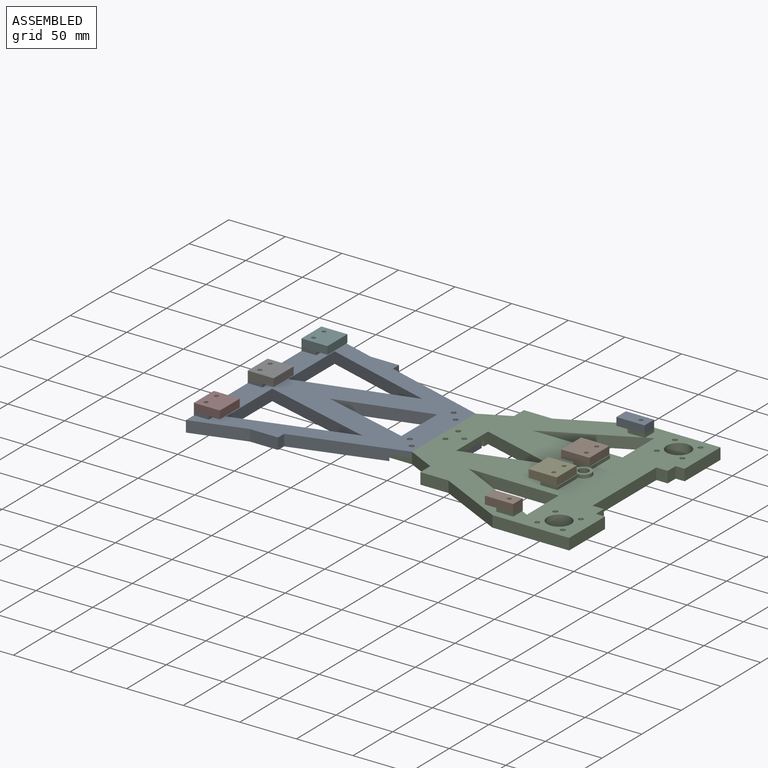
[diagram: assembled view]
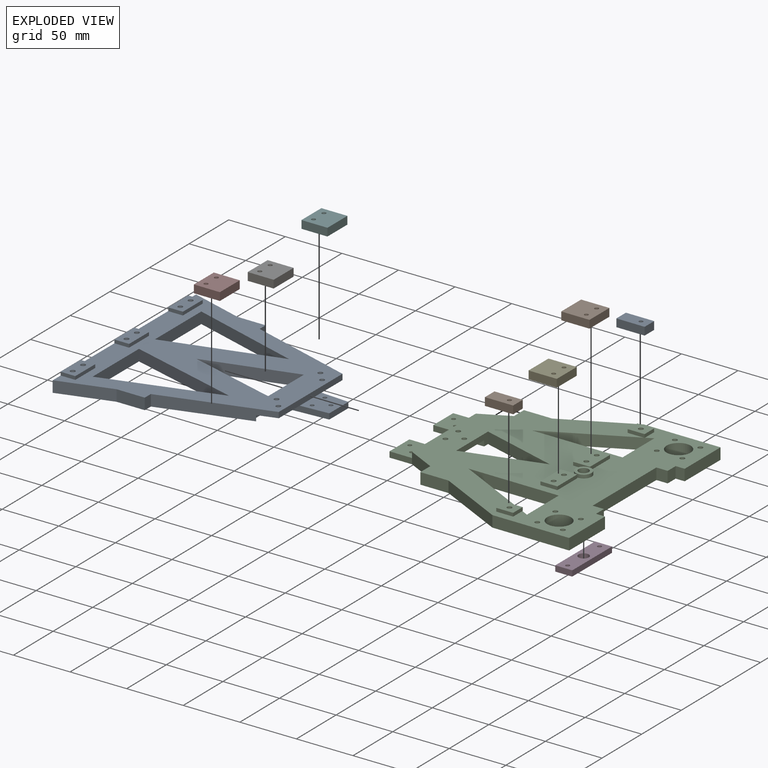
[diagram: exploded view]
GUIDED TOUR — MATED ASSEMBLY (Onshape document fc7a2a4c777dee728e34c6fb, AutoMate assembly fc7a2a4c777dee728e34c6fb_491babcda8c04f3c2a3f2eb8_254b49e5c3aef3035ae6cd4e_default)

This assembly has 10 components, labeled P0..P9 below (a component is one placed occurrence of a part; the same part can appear more than once), held together by 9 mates. A mate is a constraint between two components; its type names the relative motion it leaves free:
  FASTENED — locks the two components together rigidly (no relative motion).
Axis/direction vectors are unit vectors and 'through' points are millimeter coordinates, both in the assembly's world frame.

MATES
  1. FASTENED "Fastened 3": P2 <-> P4, direction (0.000, 0.000, 1.000) through (96.38, 79.76, -47.69) mm
  2. FASTENED "Fastened 9": P3 <-> P2, direction (0.000, 0.000, 1.000) through (103.91, 86.73, -60.69) mm
  3. FASTENED "Fastened 6": P8 <-> P7, direction (0.000, 0.000, 1.000) through (-178.54, 46.81, -47.69) mm
  4. FASTENED "Fastened 2": P9 <-> P2, direction (0.000, 0.000, -1.000) through (96.59, 133.76, -47.69) mm
  5. FASTENED "Fastened 4": P5 <-> P8, direction (0.000, 0.000, -1.000) through (-178.03, 181.81, -47.69) mm
  6. FASTENED "Fastened 7": P2 <-> P0, direction (0.000, 0.000, 1.000) through (96.80, 189.26, -47.69) mm
  7. FASTENED "Fastened 8": P2 <-> P1, direction (0.000, 0.000, 1.000) through (96.17, 24.26, -47.69) mm
  8. FASTENED "Fastened 5": P6 <-> P8, direction (0.000, 0.000, -1.000) through (-178.29, 114.31, -47.69) mm
  9. FASTENED "Fastened 1": P2 <-> P8, direction (-1.000, 0.004, 0.000) through (-19.81, 107.20, -53.19) mm

ASSEMBLY ORDER
  1. P2 — the base component [order heuristic]
  2. P8 — core [order heuristic]
  3. P9 [order verified]
  4. P1 [order verified]
  5. P0 [order verified]
  6. P5 [order verified]
  7. P6 [order verified]
  8. P7 [order verified]
  9. P4 [order verified]
  10. P3 [order verified]
Order-tag legend:
  [order verified] — this step's position reverses a verified removal order: the component was checked to insert without passing through the ones already placed.
  [order heuristic] — the first 2 components form the assembly's core: parts whose collision-free extraction could not be verified, listed in mate-graph order.

Of the 10 components, 10 carry the full construction recipe — the FeatureScript program that regenerates the part's solid from scratch; the rest are supplied as boundary geometry only.
Each toured component is shown spotlighted twice — in the assembled view, then in the exploded view, where a leader line traces a displaced component back to its assembled socket (saturated green if recipe-attached, orange if geometry-only; every other component desaturated gray) — followed by its recipe or geometry summary and the mates that hold it.
NOTE — this tour is split across 2 documents so each fits a 32k-token context. This is document 1: the component sections continue in the remaining 1 document, each repeating the header above.
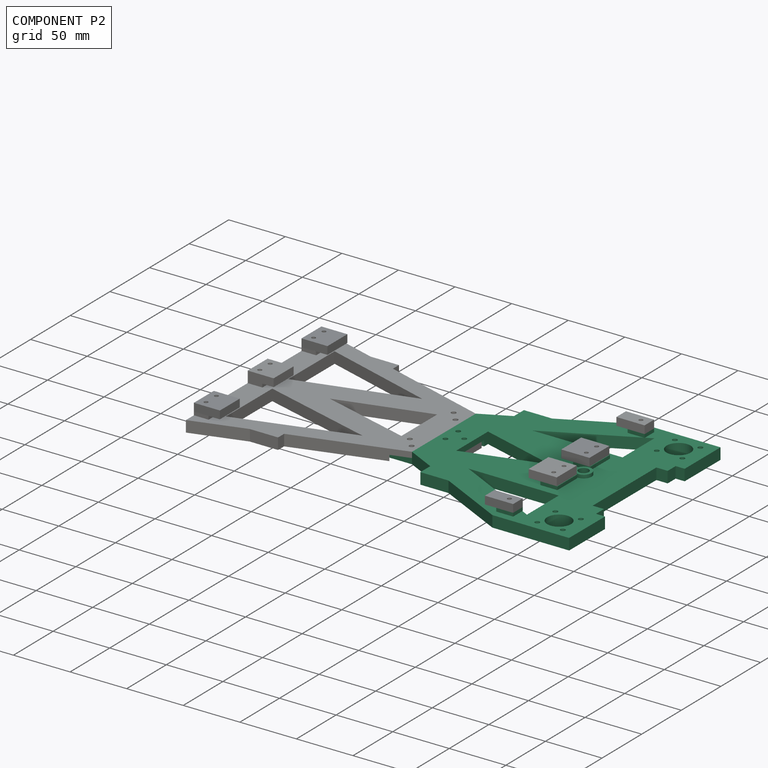
[diagram: component P2 — assembled]
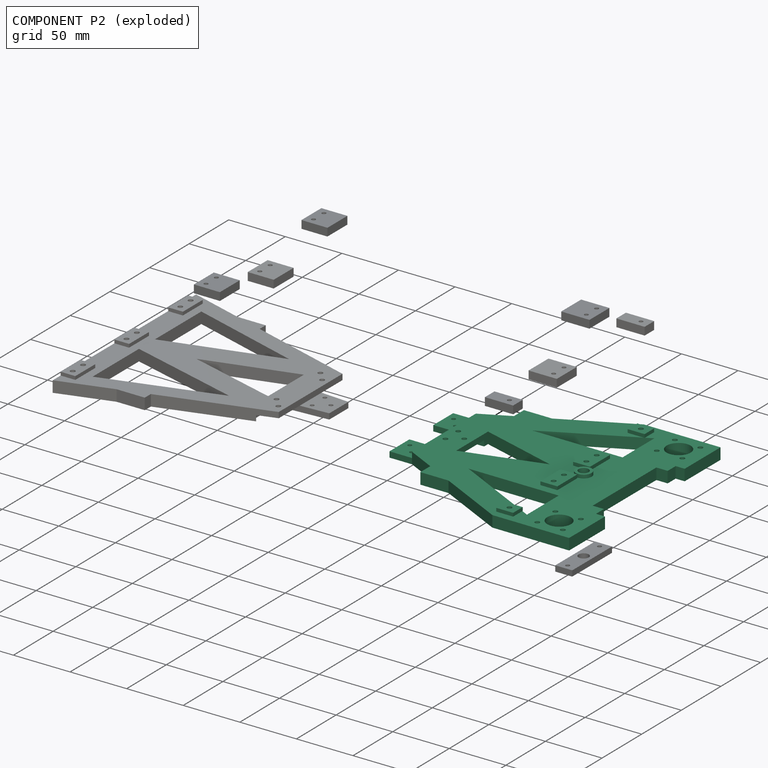
[diagram: component P2 — exploded]
COMPONENT P2 — recipe-attached (CADFS 00823999, mesh-verified: the recipe's output STEP matches this component's geometry to below the mesh-comparison resolution (tessellation chordal tolerance ~0.412 mm)).
Held by: FASTENED mate "Fastened 3" to P4; FASTENED mate "Fastened 9" to P3; FASTENED mate "Fastened 2" to P9; FASTENED mate "Fastened 7" to P0; FASTENED mate "Fastened 8" to P1; FASTENED mate "Fastened 1" to P8.
Construction recipe (FeatureScript — the CAD program that rebuilds this solid; sketch coordinates are in the units given by the * unit suffixes, e.g. mm):

FeatureScript 1511;
import(path : "onshape/std/geometry.fs", version : "1511.0");
import(path : "onshape/std/common.fs", version : "1511.0");
const mm = millimeter;
const VERTEX = EntityType.VERTEX;
const EDGE = EntityType.EDGE;
const FACE = EntityType.FACE;
const BODY = EntityType.BODY;
function v(x, y){return vector(x, y);}
function OD(order){return orderDisambiguation(order);}
function OSD(set){return originalSetDisambiguation(set);}
function TD(topology){return topologyDisambiguation(topology);}
function TDD(query){return trueDependencyDisambiguation(query);}
function sQuery(a, b, c) {return sketchEntityQuery(a, b, c);}

annotation { "Feature Type Name" : "Feature", "Feature Type Description" : "" }
export const myFeature = defineFeature(function(context is Context, id is Id, definition is map)
    precondition{}
    {
        {
            var Q0;
            Q0=qCreatedBy(makeId("Top.planeOp"),FACE);
            var sketch = newSketch(context, id + "F0", { "sketchPlane" : qUnion([Q0])});
            skCircle(sketch, "E0", {"center": v(-75, 31.2) * mm, "radius": 7 * mm});
            skCircle(sketch, "E1", {"center": v(75, 31.2) * mm, "radius": 7 * mm});
            skCircle(sketch, "E2", {"center": v(0, 0) * mm, "radius": 4.5 * mm});
            skLineSegment(sketch, "E3", {"start": v(-40, -123.8) * mm, "end": v(40, -123.8) * mm});
            skLineSegment(sketch, "E4", {"start": v(40, -123.8) * mm, "end": v(52.5, -98.8) * mm});
            skLineSegment(sketch, "E5", {"start": v(115, 26.2) * mm, "end": v(115, 46.2) * mm});
            skLineSegment(sketch, "E6", {"start": v(115, 46.2) * mm, "end": v(40, 46.2) * mm});
            skLineSegment(sketch, "E7", {"start": v(40, 46.2) * mm, "end": v(40, 36.2) * mm});
            skLineSegment(sketch, "E8", {"start": v(40, 36.2) * mm, "end": v(-40, 36.2) * mm});
            skLineSegment(sketch, "E9", {"start": v(-40, 36.2) * mm, "end": v(-40, 46.2) * mm});
            skLineSegment(sketch, "E10", {"start": v(-40, 46.2) * mm, "end": v(-115, 46.2) * mm});
            skLineSegment(sketch, "E11", {"start": v(-115, 46.2) * mm, "end": v(-115, 26.2) * mm});
            skLineSegment(sketch, "E12", {"start": v(-115, 26.2) * mm, "end": v(-65, -73.8) * mm});
            skLineSegment(sketch, "E13", {"start": v(-20, -98.8) * mm, "end": v(20, -98.8) * mm});
            skLineSegment(sketch, "E14", {"start": v(20, -98.8) * mm, "end": v(0, -30) * mm});
            skLineSegment(sketch, "E15", {"start": v(0, -30) * mm, "end": v(-20, -98.8) * mm});
            skLineSegment(sketch, "E16", {"start": v(40, 6.2) * mm, "end": v(80, 6.2) * mm});
            skLineSegment(sketch, "E17", {"start": v(80, 6.2) * mm, "end": v(40, -73.8) * mm});
            skLineSegment(sketch, "E18", {"start": v(40, -73.8) * mm, "end": v(40, 6.2) * mm});
            skLineSegment(sketch, "E19", {"start": v(-40, 6.2) * mm, "end": v(-80, 6.2) * mm});
            skLineSegment(sketch, "E20", {"start": v(-80, 6.2) * mm, "end": v(-40, -73.8) * mm});
            skLineSegment(sketch, "E21", {"start": v(-40, -73.8) * mm, "end": v(-40, 6.2) * mm});
            skLineSegment(sketch, "E22.bottom", {"start": v(-40, -123.8) * mm, "end": v(-15, -123.8) * mm});
            skLineSegment(sketch, "E22.top", {"start": v(-40, -143.8) * mm, "end": v(-15, -143.8) * mm});
            skLineSegment(sketch, "E22.left", {"start": v(-40, -123.8) * mm, "end": v(-40, -143.8) * mm});
            skLineSegment(sketch, "E22.right", {"start": v(-15, -123.8) * mm, "end": v(-15, -143.8) * mm});
            skLineSegment(sketch, "E23.bottom", {"start": v(40, -123.8) * mm, "end": v(15, -123.8) * mm});
            skLineSegment(sketch, "E23.top", {"start": v(40, -143.8) * mm, "end": v(15, -143.8) * mm});
            skLineSegment(sketch, "E23.left", {"start": v(40, -123.8) * mm, "end": v(40, -143.8) * mm});
            skLineSegment(sketch, "E23.right", {"start": v(15, -123.8) * mm, "end": v(15, -143.8) * mm});
            skLineSegment(sketch, "E24", {"start": v(-65, -73.8) * mm, "end": v(-65, -98.8) * mm});
            skLineSegment(sketch, "E25", {"start": v(-65, -98.8) * mm, "end": v(-52.5, -98.8) * mm});
            skLineSegment(sketch, "E26", {"start": v(65, -73.8) * mm, "end": v(65, -98.8) * mm});
            skLineSegment(sketch, "E27", {"start": v(65, -98.8) * mm, "end": v(52.5, -98.8) * mm});
            skLineSegment(sketch, "E28.trimOffspring", {"start": v(-52.5, -98.8) * mm, "end": v(-40, -123.8) * mm});
            skLineSegment(sketch, "E29.trimOffspring", {"start": v(65, -73.8) * mm, "end": v(115, 26.2) * mm});
            skSolve(sketch);
        }
        {
            var Q0;
            Q0 = qSketchRegion(id + "F0", true);
            extrude(context, id + "F1", {"entities" : qUnion([Q0]), "depth" : 10 * mm, "offsetDistance" : 25 * mm});
        }
        {
            var Q0;
            Q0=makeQuery(id+"F1.opExtrude","CAP_FACE",FACE,{"disambiguationData":[OSD([sQuery(id+"F0.wireOp",EDGE,"E0"),sQuery(id+"F0.wireOp",EDGE,"E1"),sQuery(id+"F0.wireOp",EDGE,"E2"),sQuery(id+"F0.wireOp",EDGE,"E3"),sQuery(id+"F0.wireOp",EDGE,"E4"),sQuery(id+"F0.wireOp",EDGE,"E5"),sQuery(id+"F0.wireOp",EDGE,"E6"),sQuery(id+"F0.wireOp",EDGE,"E7"),sQuery(id+"F0.wireOp",EDGE,"E8"),sQuery(id+"F0.wireOp",EDGE,"E9"),sQuery(id+"F0.wireOp",EDGE,"E10"),sQuery(id+"F0.wireOp",EDGE,"E11"),sQuery(id+"F0.wireOp",EDGE,"E12"),sQuery(id+"F0.wireOp",EDGE,"E13"),sQuery(id+"F0.wireOp",EDGE,"E14"),sQuery(id+"F0.wireOp",EDGE,"E15"),sQuery(id+"F0.wireOp",EDGE,"E16"),sQuery(id+"F0.wireOp",EDGE,"E17"),sQuery(id+"F0.wireOp",EDGE,"E18"),sQuery(id+"F0.wireOp",EDGE,"E19"),sQuery(id+"F0.wireOp",EDGE,"E20"),sQuery(id+"F0.wireOp",EDGE,"E21")])],"isStart":false});
            var sketch = newSketch(context, id + "F2", { "sketchPlane" : qUnion([Q0])});
            skLineSegment(sketch, "E30.bottom", {"start": v(-33, 0) * mm, "end": v(-8, 0) * mm});
            skLineSegment(sketch, "E30.top", {"start": v(-33, -15) * mm, "end": v(-8, -15) * mm});
            skLineSegment(sketch, "E30.left", {"start": v(-33, 0) * mm, "end": v(-33, -15) * mm});
            skLineSegment(sketch, "E30.right", {"start": v(-8, 0) * mm, "end": v(-8, -15) * mm});
            skLineSegment(sketch, "E31.bottom", {"start": v(8, 0) * mm, "end": v(33, 0) * mm});
            skLineSegment(sketch, "E31.top", {"start": v(8, -15) * mm, "end": v(33, -15) * mm});
            skLineSegment(sketch, "E31.left", {"start": v(8, 0) * mm, "end": v(8, -15) * mm});
            skLineSegment(sketch, "E31.right", {"start": v(33, 0) * mm, "end": v(33, -15) * mm});
            skLineSegment(sketch, "E32.bottom", {"start": v(76.5, 0) * mm, "end": v(88.5, 0) * mm});
            skLineSegment(sketch, "E32.top", {"start": v(76.5, -15) * mm, "end": v(88.5, -15) * mm});
            skLineSegment(sketch, "E32.left", {"start": v(76.5, 0) * mm, "end": v(76.5, -15) * mm});
            skLineSegment(sketch, "E32.right", {"start": v(88.5, 0) * mm, "end": v(88.5, -15) * mm});
            skLineSegment(sketch, "E33.bottom", {"start": v(-76.5, 0) * mm, "end": v(-88.5, 0) * mm});
            skLineSegment(sketch, "E33.top", {"start": v(-76.5, -15) * mm, "end": v(-88.5, -15) * mm});
            skLineSegment(sketch, "E33.left", {"start": v(-76.5, 0) * mm, "end": v(-76.5, -15) * mm});
            skLineSegment(sketch, "E33.right", {"start": v(-88.5, 0) * mm, "end": v(-88.5, -15) * mm});
            skCircle(sketch, "E34", {"center": v(0, 0) * mm, "radius": 4.5 * mm});
            skCircle(sketch, "E35", {"center": v(0, 0) * mm, "radius": 7 * mm});
            skSolve(sketch);
        }
        {
            var Q0;
            Q0 = qSketchRegion(id + "F2", true);
            extrude(context, id + "F3", {"entities" : qUnion([Q0]), "operationType" : NewBodyOperationType.ADD, "depth" : 3 * mm, "offsetDistance" : 25 * mm});
        }
        {
            var Q0;
            Q0=makeQuery(id+"F1.opExtrude","CAP_FACE",FACE,{"disambiguationData":[OSD([sQuery(id+"F0.wireOp",EDGE,"E0"),sQuery(id+"F0.wireOp",EDGE,"E1"),sQuery(id+"F0.wireOp",EDGE,"E2"),sQuery(id+"F0.wireOp",EDGE,"E3"),sQuery(id+"F0.wireOp",EDGE,"E4"),sQuery(id+"F0.wireOp",EDGE,"E5"),sQuery(id+"F0.wireOp",EDGE,"E6"),sQuery(id+"F0.wireOp",EDGE,"E7"),sQuery(id+"F0.wireOp",EDGE,"E8"),sQuery(id+"F0.wireOp",EDGE,"E9"),sQuery(id+"F0.wireOp",EDGE,"E10"),sQuery(id+"F0.wireOp",EDGE,"E11"),sQuery(id+"F0.wireOp",EDGE,"E12"),sQuery(id+"F0.wireOp",EDGE,"E13"),sQuery(id+"F0.wireOp",EDGE,"E14"),sQuery(id+"F0.wireOp",EDGE,"E15"),sQuery(id+"F0.wireOp",EDGE,"E16"),sQuery(id+"F0.wireOp",EDGE,"E17"),sQuery(id+"F0.wireOp",EDGE,"E18"),sQuery(id+"F0.wireOp",EDGE,"E19"),sQuery(id+"F0.wireOp",EDGE,"E20"),sQuery(id+"F0.wireOp",EDGE,"E21")])],"isStart":true});
            var sketch = newSketch(context, id + "F4", { "sketchPlane" : qUnion([Q0])});
            skLineSegment(sketch, "E36.bottom", {"start": v(-15, 123.8) * mm, "end": v(15, 123.8) * mm});
            skLineSegment(sketch, "E36.top", {"start": v(-15, 98.8) * mm, "end": v(15, 98.8) * mm});
            skLineSegment(sketch, "E36.left", {"start": v(-15, 123.8) * mm, "end": v(-15, 98.8) * mm});
            skLineSegment(sketch, "E36.right", {"start": v(15, 123.8) * mm, "end": v(15, 98.8) * mm});
            skSolve(sketch);
        }
        {
            var Q0;
            Q0 = qSketchRegion(id + "F4", true);
            extrude(context, id + "F5", {"entities" : qUnion([Q0]), "operationType" : NewBodyOperationType.REMOVE, "oppositeDirection" : true, "depth" : 5 * mm, "offsetDistance" : 25 * mm});
        }
        {
            var Q0;
            Q0=makeQuery(id+"F1.opExtrude","CAP_FACE",FACE,{"disambiguationData":[OSD([sQuery(id+"F0.wireOp",EDGE,"E0"),sQuery(id+"F0.wireOp",EDGE,"E1"),sQuery(id+"F0.wireOp",EDGE,"E2"),sQuery(id+"F0.wireOp",EDGE,"E3"),sQuery(id+"F0.wireOp",EDGE,"E4"),sQuery(id+"F0.wireOp",EDGE,"E5"),sQuery(id+"F0.wireOp",EDGE,"E6"),sQuery(id+"F0.wireOp",EDGE,"E7"),sQuery(id+"F0.wireOp",EDGE,"E8"),sQuery(id+"F0.wireOp",EDGE,"E9"),sQuery(id+"F0.wireOp",EDGE,"E10"),sQuery(id+"F0.wireOp",EDGE,"E11"),sQuery(id+"F0.wireOp",EDGE,"E12"),sQuery(id+"F0.wireOp",EDGE,"E13"),sQuery(id+"F0.wireOp",EDGE,"E14"),sQuery(id+"F0.wireOp",EDGE,"E15"),sQuery(id+"F0.wireOp",EDGE,"E16"),sQuery(id+"F0.wireOp",EDGE,"E17"),sQuery(id+"F0.wireOp",EDGE,"E18"),sQuery(id+"F0.wireOp",EDGE,"E19"),sQuery(id+"F0.wireOp",EDGE,"E20"),sQuery(id+"F0.wireOp",EDGE,"E21"),sQuery(id+"F0.wireOp",EDGE,"E22.top"),sQuery(id+"F0.wireOp",EDGE,"E22.left"),sQuery(id+"F0.wireOp",EDGE,"E22.right"),sQuery(id+"F0.wireOp",EDGE,"E23.top"),sQuery(id+"F0.wireOp",EDGE,"E23.left"),sQuery(id+"F0.wireOp",EDGE,"E23.right"),sQuery(id+"F0.wireOp",EDGE,"E24"),sQuery(id+"F0.wireOp",EDGE,"E25"),sQuery(id+"F0.wireOp",EDGE,"E26"),sQuery(id+"F0.wireOp",EDGE,"E27"),sQuery(id+"F0.wireOp",EDGE,"E28.trimOffspring"),sQuery(id+"F0.wireOp",EDGE,"E29.trimOffspring")])],"isStart":false});
            var sketch = newSketch(context, id + "F6", { "sketchPlane" : qUnion([Q0])});
            skLineSegment(sketch, "E37.bottom", {"start": v(-40, -143.8) * mm, "end": v(-15, -143.8) * mm});
            skLineSegment(sketch, "E37.top", {"start": v(-40, -123.8) * mm, "end": v(-15, -123.8) * mm});
            skLineSegment(sketch, "E37.left", {"start": v(-40, -143.8) * mm, "end": v(-40, -123.8) * mm});
            skLineSegment(sketch, "E37.right", {"start": v(-15, -143.8) * mm, "end": v(-15, -123.8) * mm});
            skLineSegment(sketch, "E38.bottom", {"start": v(15, -123.8) * mm, "end": v(40, -123.8) * mm});
            skLineSegment(sketch, "E38.top", {"start": v(15, -143.8) * mm, "end": v(40, -143.8) * mm});
            skLineSegment(sketch, "E38.left", {"start": v(15, -123.8) * mm, "end": v(15, -143.8) * mm});
            skLineSegment(sketch, "E38.right", {"start": v(40, -123.8) * mm, "end": v(40, -143.8) * mm});
            skSolve(sketch);
        }
        {
            var Q0;
            Q0 = qSketchRegion(id + "F6", true);
            extrude(context, id + "F7", {"entities" : qUnion([Q0]), "operationType" : NewBodyOperationType.REMOVE, "oppositeDirection" : true, "depth" : 5 * mm, "offsetDistance" : 25 * mm});
        }
        {
            var Q0;
            Q0=makeQuery(id+"F1.opExtrude","CAP_FACE",FACE,{"disambiguationData":[OSD([sQuery(id+"F0.wireOp",EDGE,"E0"),sQuery(id+"F0.wireOp",EDGE,"E1"),sQuery(id+"F0.wireOp",EDGE,"E2"),sQuery(id+"F0.wireOp",EDGE,"E3"),sQuery(id+"F0.wireOp",EDGE,"E4"),sQuery(id+"F0.wireOp",EDGE,"E5"),sQuery(id+"F0.wireOp",EDGE,"E6"),sQuery(id+"F0.wireOp",EDGE,"E7"),sQuery(id+"F0.wireOp",EDGE,"E8"),sQuery(id+"F0.wireOp",EDGE,"E9"),sQuery(id+"F0.wireOp",EDGE,"E10"),sQuery(id+"F0.wireOp",EDGE,"E11"),sQuery(id+"F0.wireOp",EDGE,"E12"),sQuery(id+"F0.wireOp",EDGE,"E13"),sQuery(id+"F0.wireOp",EDGE,"E14"),sQuery(id+"F0.wireOp",EDGE,"E15"),sQuery(id+"F0.wireOp",EDGE,"E16"),sQuery(id+"F0.wireOp",EDGE,"E17"),sQuery(id+"F0.wireOp",EDGE,"E18"),sQuery(id+"F0.wireOp",EDGE,"E19"),sQuery(id+"F0.wireOp",EDGE,"E20"),sQuery(id+"F0.wireOp",EDGE,"E21"),sQuery(id+"F0.wireOp",EDGE,"E22.top"),sQuery(id+"F0.wireOp",EDGE,"E22.left"),sQuery(id+"F0.wireOp",EDGE,"E22.right"),sQuery(id+"F0.wireOp",EDGE,"E23.top"),sQuery(id+"F0.wireOp",EDGE,"E23.left"),sQuery(id+"F0.wireOp",EDGE,"E23.right"),sQuery(id+"F0.wireOp",EDGE,"E24"),sQuery(id+"F0.wireOp",EDGE,"E25"),sQuery(id+"F0.wireOp",EDGE,"E26"),sQuery(id+"F0.wireOp",EDGE,"E27"),sQuery(id+"F0.wireOp",EDGE,"E28.trimOffspring"),sQuery(id+"F0.wireOp",EDGE,"E29.trimOffspring")])],"isStart":false});
            var sketch = newSketch(context, id + "F8", { "sketchPlane" : qUnion([Q0])});
            skCircle(sketch, "E39", {"center": v(-32, -137.8) * mm, "radius": 1.75 * mm});
            skCircle(sketch, "E40", {"center": v(-23, -129.8) * mm, "radius": 1.75 * mm});
            skCircle(sketch, "E41", {"center": v(23, -137.8) * mm, "radius": 1.75 * mm});
            skCircle(sketch, "E42", {"center": v(32, -129.8) * mm, "radius": 1.75 * mm});
            skCircle(sketch, "E43", {"center": v(-8, -116.8) * mm, "radius": 2.1 * mm});
            skCircle(sketch, "E44", {"center": v(8, -116.8) * mm, "radius": 2.1 * mm});
            skCircle(sketch, "E45", {"center": v(0, -105.8) * mm, "radius": 2.1 * mm});
            skSolve(sketch);
        }
        {
            var Q0;
            Q0 = qSketchRegion(id + "F8", true);
            extrude(context, id + "F9", {"entities" : qUnion([Q0]), "operationType" : NewBodyOperationType.REMOVE, "oppositeDirection" : true, "depth" : 25 * mm, "offsetDistance" : 25 * mm});
        }
        {
            var Q0;
            Q0=makeQuery(id+"F3.opExtrude","CAP_FACE",FACE,{"disambiguationData":[OSD([sQuery(id+"F2.wireOp",EDGE,"E33.bottom"),sQuery(id+"F2.wireOp",EDGE,"E33.top"),sQuery(id+"F2.wireOp",EDGE,"E33.left"),sQuery(id+"F2.wireOp",EDGE,"E33.right")])],"isStart":false});
            var sketch = newSketch(context, id + "F10", { "sketchPlane" : qUnion([Q0])});
            skCircle(sketch, "E46", {"center": v(-82.5, -7.5) * mm, "radius": 2.1 * mm});
            skCircle(sketch, "E47", {"center": v(-27, -7.5) * mm, "radius": 2.1 * mm});
            skCircle(sketch, "E48", {"center": v(27, -7.5) * mm, "radius": 2.1 * mm});
            skCircle(sketch, "E49", {"center": v(82.5, -7.5) * mm, "radius": 2.1 * mm});
            skCircle(sketch, "E50", {"center": v(-14, -7.5) * mm, "radius": 2.1 * mm});
            skCircle(sketch, "E51", {"center": v(14, -7.5) * mm, "radius": 2.1 * mm});
            skSolve(sketch);
        }
        {
            var Q0;
            Q0 = qSketchRegion(id + "F10", true);
            extrude(context, id + "F11", {"entities" : qUnion([Q0]), "operationType" : NewBodyOperationType.REMOVE, "oppositeDirection" : true, "depth" : 6 * mm, "offsetDistance" : 25 * mm});
        }
        {
            var Q0;
            Q0=makeQuery(id+"F1.opExtrude","CAP_FACE",FACE,{"disambiguationData":[OSD([sQuery(id+"F0.wireOp",EDGE,"E0"),sQuery(id+"F0.wireOp",EDGE,"E1"),sQuery(id+"F0.wireOp",EDGE,"E2"),sQuery(id+"F0.wireOp",EDGE,"E3"),sQuery(id+"F0.wireOp",EDGE,"E4"),sQuery(id+"F0.wireOp",EDGE,"E5"),sQuery(id+"F0.wireOp",EDGE,"E6"),sQuery(id+"F0.wireOp",EDGE,"E7"),sQuery(id+"F0.wireOp",EDGE,"E8"),sQuery(id+"F0.wireOp",EDGE,"E9"),sQuery(id+"F0.wireOp",EDGE,"E10"),sQuery(id+"F0.wireOp",EDGE,"E11"),sQuery(id+"F0.wireOp",EDGE,"E12"),sQuery(id+"F0.wireOp",EDGE,"E13"),sQuery(id+"F0.wireOp",EDGE,"E14"),sQuery(id+"F0.wireOp",EDGE,"E15"),sQuery(id+"F0.wireOp",EDGE,"E16"),sQuery(id+"F0.wireOp",EDGE,"E17"),sQuery(id+"F0.wireOp",EDGE,"E18"),sQuery(id+"F0.wireOp",EDGE,"E19"),sQuery(id+"F0.wireOp",EDGE,"E20"),sQuery(id+"F0.wireOp",EDGE,"E21"),sQuery(id+"F0.wireOp",EDGE,"E22.top"),sQuery(id+"F0.wireOp",EDGE,"E22.left"),sQuery(id+"F0.wireOp",EDGE,"E22.right"),sQuery(id+"F0.wireOp",EDGE,"E23.top"),sQuery(id+"F0.wireOp",EDGE,"E23.left"),sQuery(id+"F0.wireOp",EDGE,"E23.right"),sQuery(id+"F0.wireOp",EDGE,"E24"),sQuery(id+"F0.wireOp",EDGE,"E25"),sQuery(id+"F0.wireOp",EDGE,"E26"),sQuery(id+"F0.wireOp",EDGE,"E27"),sQuery(id+"F0.wireOp",EDGE,"E28.trimOffspring"),sQuery(id+"F0.wireOp",EDGE,"E29.trimOffspring")])],"isStart":false});
            var sketch = newSketch(context, id + "F12", { "sketchPlane" : qUnion([Q0])});
            skLineSegment(sketch, "E52.bottom", {"start": v(-115, 46.2) * mm, "end": v(-95, 46.2) * mm});
            skLineSegment(sketch, "E52.top", {"start": v(-115, -53.8) * mm, "end": v(-95, -53.8) * mm});
            skLineSegment(sketch, "E52.left", {"start": v(-115, 46.2) * mm, "end": v(-115, -53.8) * mm});
            skLineSegment(sketch, "E52.right", {"start": v(-95, 46.2) * mm, "end": v(-95, -53.8) * mm});
            skLineSegment(sketch, "E53.bottom", {"start": v(115, 46.2) * mm, "end": v(95, 46.2) * mm});
            skLineSegment(sketch, "E53.top", {"start": v(115, -58.78) * mm, "end": v(95, -58.78) * mm});
            skLineSegment(sketch, "E53.left", {"start": v(115, 46.2) * mm, "end": v(115, -58.78) * mm});
            skLineSegment(sketch, "E53.right", {"start": v(95, 46.2) * mm, "end": v(95, -58.78) * mm});
            skSolve(sketch);
        }
        {
            var Q0;
            Q0 = qSketchRegion(id + "F12", true);
            extrude(context, id + "F13", {"entities" : qUnion([Q0]), "operationType" : NewBodyOperationType.REMOVE, "oppositeDirection" : true, "depth" : 25 * mm, "offsetDistance" : 25 * mm});
        }
        {
            var Q0;
            Q0=makeQuery(id+"F1.opExtrude","CAP_FACE",FACE,{"disambiguationData":[OSD([sQuery(id+"F0.wireOp",EDGE,"E0"),sQuery(id+"F0.wireOp",EDGE,"E1"),sQuery(id+"F0.wireOp",EDGE,"E2"),sQuery(id+"F0.wireOp",EDGE,"E3"),sQuery(id+"F0.wireOp",EDGE,"E4"),sQuery(id+"F0.wireOp",EDGE,"E5"),sQuery(id+"F0.wireOp",EDGE,"E6"),sQuery(id+"F0.wireOp",EDGE,"E7"),sQuery(id+"F0.wireOp",EDGE,"E8"),sQuery(id+"F0.wireOp",EDGE,"E9"),sQuery(id+"F0.wireOp",EDGE,"E10"),sQuery(id+"F0.wireOp",EDGE,"E11"),sQuery(id+"F0.wireOp",EDGE,"E12"),sQuery(id+"F0.wireOp",EDGE,"E13"),sQuery(id+"F0.wireOp",EDGE,"E14"),sQuery(id+"F0.wireOp",EDGE,"E15"),sQuery(id+"F0.wireOp",EDGE,"E16"),sQuery(id+"F0.wireOp",EDGE,"E17"),sQuery(id+"F0.wireOp",EDGE,"E18"),sQuery(id+"F0.wireOp",EDGE,"E19"),sQuery(id+"F0.wireOp",EDGE,"E20"),sQuery(id+"F0.wireOp",EDGE,"E21"),sQuery(id+"F0.wireOp",EDGE,"E22.top"),sQuery(id+"F0.wireOp",EDGE,"E22.left"),sQuery(id+"F0.wireOp",EDGE,"E22.right"),sQuery(id+"F0.wireOp",EDGE,"E23.top"),sQuery(id+"F0.wireOp",EDGE,"E23.left"),sQuery(id+"F0.wireOp",EDGE,"E23.right"),sQuery(id+"F0.wireOp",EDGE,"E24"),sQuery(id+"F0.wireOp",EDGE,"E25"),sQuery(id+"F0.wireOp",EDGE,"E26"),sQuery(id+"F0.wireOp",EDGE,"E27"),sQuery(id+"F0.wireOp",EDGE,"E28.trimOffspring"),sQuery(id+"F0.wireOp",EDGE,"E29.trimOffspring")])],"isStart":false});
            var sketch = newSketch(context, id + "F14", { "sketchPlane" : qUnion([Q0])});
            skCircle(sketch, "E54", {"center": v(-75, 31.2) * mm, "radius": 10.6 * mm});
            skCircle(sketch, "E55", {"center": v(-75, 31.2) * mm, "radius": 16 * mm, "construction": true});
            skLineSegment(sketch, "E56", {"start": v(-75, 31.2) * mm, "end": v(-51.09, 55.11) * mm, "construction": true});
            skLineSegment(sketch, "E57", {"start": v(-75, 31.2) * mm, "end": v(-39.91, 31.2) * mm, "construction": true});
            skCircle(sketch, "E58", {"center": v(-63.69, 42.51) * mm, "radius": 2.1 * mm});
            skLineSegment(sketch, "E59", {"start": v(-75, 31.2) * mm, "end": v(-63.69, 19.89) * mm, "construction": true});
            skLineSegment(sketch, "E60", {"start": v(-75, 31.2) * mm, "end": v(-86.31, 19.89) * mm, "construction": true});
            skLineSegment(sketch, "E61", {"start": v(-75, 31.2) * mm, "end": v(-86.31, 42.51) * mm, "construction": true});
            skCircle(sketch, "E62", {"center": v(-86.31, 42.51) * mm, "radius": 2.1 * mm});
            skCircle(sketch, "E63", {"center": v(-86.31, 19.89) * mm, "radius": 2.1 * mm});
            skCircle(sketch, "E64", {"center": v(-63.69, 19.89) * mm, "radius": 2.1 * mm});
            skCircle(sketch, "E65", {"center": v(75, 31.2) * mm, "radius": 16 * mm, "construction": true});
            skLineSegment(sketch, "E66", {"start": v(75, 31.2) * mm, "end": v(91, 31.2) * mm, "construction": true});
            skLineSegment(sketch, "E67", {"start": v(75, 31.2) * mm, "end": v(86.31, 42.51) * mm, "construction": true});
            skLineSegment(sketch, "E68", {"start": v(75, 31.2) * mm, "end": v(63.69, 42.51) * mm, "construction": true});
            skLineSegment(sketch, "E69", {"start": v(75, 31.2) * mm, "end": v(63.69, 19.89) * mm, "construction": true});
            skLineSegment(sketch, "E70", {"start": v(75, 31.2) * mm, "end": v(86.31, 19.89) * mm, "construction": true});
            skCircle(sketch, "E71", {"center": v(63.69, 42.51) * mm, "radius": 2.1 * mm});
            skCircle(sketch, "E72", {"center": v(63.69, 19.89) * mm, "radius": 2.1 * mm});
            skCircle(sketch, "E73", {"center": v(86.31, 42.51) * mm, "radius": 2.1 * mm});
            skCircle(sketch, "E74", {"center": v(86.31, 19.89) * mm, "radius": 2.1 * mm});
            skCircle(sketch, "E75", {"center": v(75, 31.2) * mm, "radius": 10.5 * mm});
            skSolve(sketch);
        }
        {
            var Q0;
            Q0 = qSketchRegion(id + "F14", true);
            extrude(context, id + "F15", {"entities" : qUnion([Q0]), "operationType" : NewBodyOperationType.REMOVE, "oppositeDirection" : true, "depth" : 25 * mm, "offsetDistance" : 25 * mm});
        }
        {
            var Q0;
            Q0=makeQuery(id+"F1.opExtrude","CAP_FACE",FACE,{"disambiguationData":[OSD([sQuery(id+"F0.wireOp",EDGE,"E0"),sQuery(id+"F0.wireOp",EDGE,"E1"),sQuery(id+"F0.wireOp",EDGE,"E2"),sQuery(id+"F0.wireOp",EDGE,"E3"),sQuery(id+"F0.wireOp",EDGE,"E4"),sQuery(id+"F0.wireOp",EDGE,"E5"),sQuery(id+"F0.wireOp",EDGE,"E6"),sQuery(id+"F0.wireOp",EDGE,"E7"),sQuery(id+"F0.wireOp",EDGE,"E8"),sQuery(id+"F0.wireOp",EDGE,"E9"),sQuery(id+"F0.wireOp",EDGE,"E10"),sQuery(id+"F0.wireOp",EDGE,"E11"),sQuery(id+"F0.wireOp",EDGE,"E12"),sQuery(id+"F0.wireOp",EDGE,"E13"),sQuery(id+"F0.wireOp",EDGE,"E14"),sQuery(id+"F0.wireOp",EDGE,"E15"),sQuery(id+"F0.wireOp",EDGE,"E16"),sQuery(id+"F0.wireOp",EDGE,"E17"),sQuery(id+"F0.wireOp",EDGE,"E18"),sQuery(id+"F0.wireOp",EDGE,"E19"),sQuery(id+"F0.wireOp",EDGE,"E20"),sQuery(id+"F0.wireOp",EDGE,"E21"),sQuery(id+"F0.wireOp",EDGE,"E22.top"),sQuery(id+"F0.wireOp",EDGE,"E22.left"),sQuery(id+"F0.wireOp",EDGE,"E22.right"),sQuery(id+"F0.wireOp",EDGE,"E23.top"),sQuery(id+"F0.wireOp",EDGE,"E23.left"),sQuery(id+"F0.wireOp",EDGE,"E23.right"),sQuery(id+"F0.wireOp",EDGE,"E24"),sQuery(id+"F0.wireOp",EDGE,"E25"),sQuery(id+"F0.wireOp",EDGE,"E26"),sQuery(id+"F0.wireOp",EDGE,"E27"),sQuery(id+"F0.wireOp",EDGE,"E28.trimOffspring"),sQuery(id+"F0.wireOp",EDGE,"E29.trimOffspring")])],"isStart":false});
            var sketch = newSketch(context, id + "F16", { "sketchPlane" : qUnion([Q0])});
            skLineSegment(sketch, "E76.bottom", {"start": v(-95, 46.2) * mm, "end": v(-50, 46.2) * mm});
            skLineSegment(sketch, "E76.top", {"start": v(-95, 54.2) * mm, "end": v(-50, 54.2) * mm});
            skLineSegment(sketch, "E76.left", {"start": v(-95, 46.2) * mm, "end": v(-95, 54.2) * mm});
            skLineSegment(sketch, "E76.right", {"start": v(-50, 46.2) * mm, "end": v(-50, 54.2) * mm});
            skLineSegment(sketch, "E77.bottom", {"start": v(95, 46.2) * mm, "end": v(50, 46.2) * mm});
            skLineSegment(sketch, "E77.top", {"start": v(95, 54.2) * mm, "end": v(50, 54.2) * mm});
            skLineSegment(sketch, "E77.left", {"start": v(95, 46.2) * mm, "end": v(95, 54.2) * mm});
            skLineSegment(sketch, "E77.right", {"start": v(50, 46.2) * mm, "end": v(50, 54.2) * mm});
            skSolve(sketch);
        }
        {
            var Q0;
            Q0 = qSketchRegion(id + "F16", true);
            extrude(context, id + "F17", {"entities" : qUnion([Q0]), "operationType" : NewBodyOperationType.ADD, "oppositeDirection" : true, "depth" : 10 * mm, "offsetDistance" : 25 * mm});
        }
        {
            var Q0;
            Q0=makeQuery(id+"F17.boolean.opBoolean","MERGE",FACE,{"derivedFrom":[makeQuery(id+"F1.opExtrude","CAP_FACE",FACE,{"disambiguationData":[OSD([sQuery(id+"F0.wireOp",EDGE,"E0"),sQuery(id+"F0.wireOp",EDGE,"E1"),sQuery(id+"F0.wireOp",EDGE,"E2"),sQuery(id+"F0.wireOp",EDGE,"E3"),sQuery(id+"F0.wireOp",EDGE,"E4"),sQuery(id+"F0.wireOp",EDGE,"E5"),sQuery(id+"F0.wireOp",EDGE,"E6"),sQuery(id+"F0.wireOp",EDGE,"E7"),sQuery(id+"F0.wireOp",EDGE,"E8"),sQuery(id+"F0.wireOp",EDGE,"E9"),sQuery(id+"F0.wireOp",EDGE,"E10"),sQuery(id+"F0.wireOp",EDGE,"E11"),sQuery(id+"F0.wireOp",EDGE,"E12"),sQuery(id+"F0.wireOp",EDGE,"E13"),sQuery(id+"F0.wireOp",EDGE,"E14"),sQuery(id+"F0.wireOp",EDGE,"E15"),sQuery(id+"F0.wireOp",EDGE,"E16"),sQuery(id+"F0.wireOp",EDGE,"E17"),sQuery(id+"F0.wireOp",EDGE,"E18"),sQuery(id+"F0.wireOp",EDGE,"E19"),sQuery(id+"F0.wireOp",EDGE,"E20"),sQuery(id+"F0.wireOp",EDGE,"E21"),sQuery(id+"F0.wireOp",EDGE,"E22.top"),sQuery(id+"F0.wireOp",EDGE,"E22.left"),sQuery(id+"F0.wireOp",EDGE,"E22.right"),sQuery(id+"F0.wireOp",EDGE,"E23.top"),sQuery(id+"F0.wireOp",EDGE,"E23.left"),sQuery(id+"F0.wireOp",EDGE,"E23.right"),sQuery(id+"F0.wireOp",EDGE,"E24"),sQuery(id+"F0.wireOp",EDGE,"E25"),sQuery(id+"F0.wireOp",EDGE,"E26"),sQuery(id+"F0.wireOp",EDGE,"E27"),sQuery(id+"F0.wireOp",EDGE,"E28.trimOffspring"),sQuery(id+"F0.wireOp",EDGE,"E29.trimOffspring")])],"isStart":true}),makeQuery(id+"F17.opExtrude","CAP_FACE",FACE,{"disambiguationData":[OSD([sQuery(id+"F16.wireOp",EDGE,"E76.bottom"),sQuery(id+"F16.wireOp",EDGE,"E76.top"),sQuery(id+"F16.wireOp",EDGE,"E76.left"),sQuery(id+"F16.wireOp",EDGE,"E76.right")])],"isStart":false}),makeQuery(id+"F17.opExtrude","CAP_FACE",FACE,{"disambiguationData":[OSD([sQuery(id+"F16.wireOp",EDGE,"E77.bottom"),sQuery(id+"F16.wireOp",EDGE,"E77.top"),sQuery(id+"F16.wireOp",EDGE,"E77.left"),sQuery(id+"F16.wireOp",EDGE,"E77.right")])],"isStart":false})]});
            var sketch = newSketch(context, id + "F18", { "sketchPlane" : qUnion([Q0])});
            skLineSegment(sketch, "E78", {"start": v(-4.12, 6.5) * mm, "end": v(4.12, 6.5) * mm});
            skLineSegment(sketch, "E79", {"start": v(-4.12, 6.5) * mm, "end": v(-7.2, 0) * mm});
            skLineSegment(sketch, "E80", {"start": v(-7.2, 0) * mm, "end": v(-4.12, -6.5) * mm});
            skLineSegment(sketch, "E81", {"start": v(-4.12, -6.5) * mm, "end": v(4.12, -6.5) * mm});
            skLineSegment(sketch, "E82", {"start": v(4.12, -6.5) * mm, "end": v(7.2, 0) * mm});
            skLineSegment(sketch, "E83", {"start": v(7.2, 0) * mm, "end": v(4.12, 6.5) * mm});
            skCircle(sketch, "E84", {"center": v(-20, 0) * mm, "radius": 2.1 * mm});
            skCircle(sketch, "E85", {"center": v(20, 0) * mm, "radius": 2.1 * mm});
            skSolve(sketch);
        }
        {
            var Q0;
            Q0 = qSketchRegion(id + "F18", true);
            extrude(context, id + "F19", {"entities" : qUnion([Q0]), "operationType" : NewBodyOperationType.REMOVE, "oppositeDirection" : true, "depth" : 6.85 * mm, "offsetDistance" : 25 * mm});
        }
    });
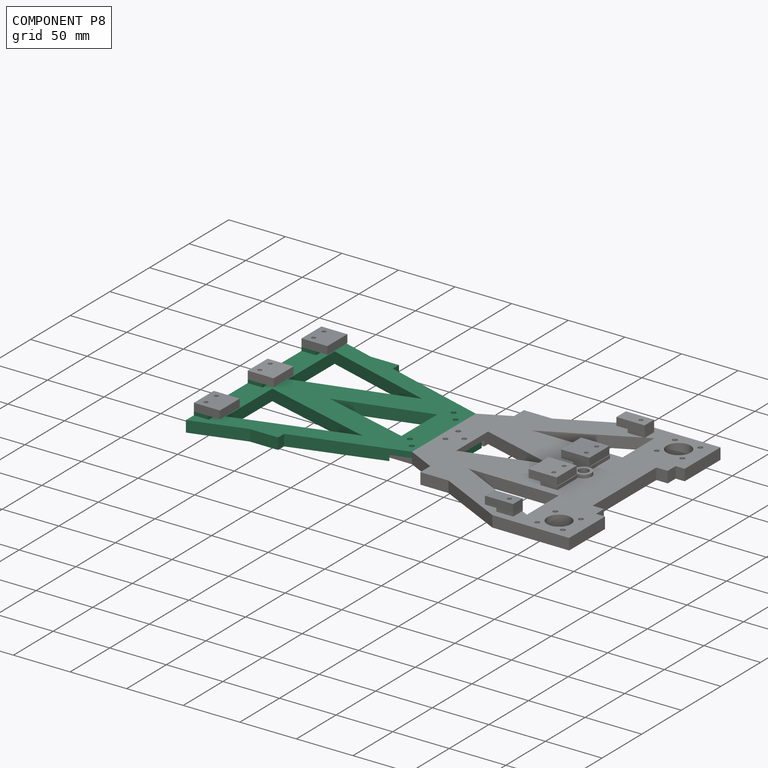
[diagram: component P8 — assembled]
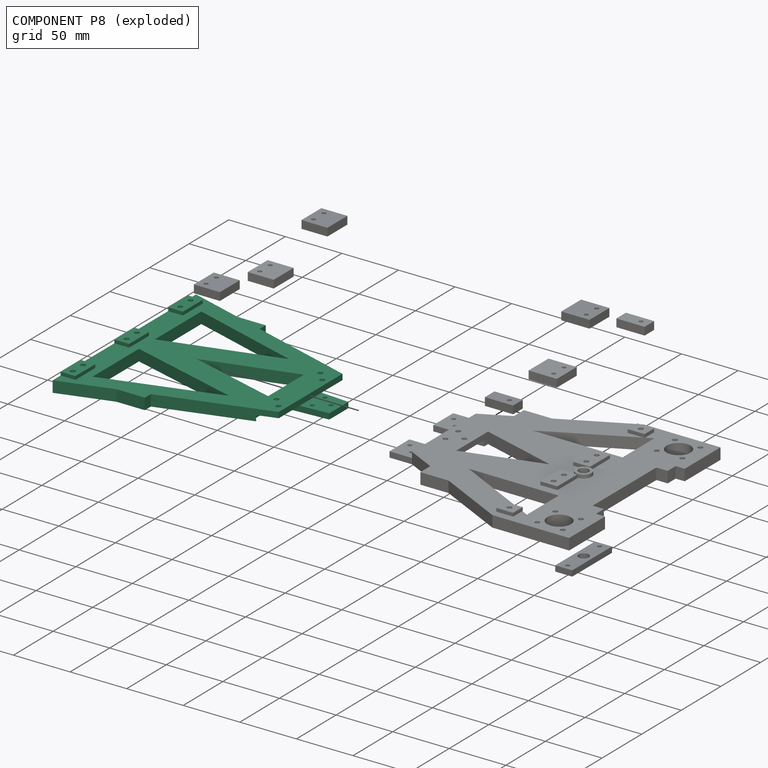
[diagram: component P8 — exploded]
COMPONENT P8 — recipe-attached (CADFS 00824002, mesh-verified: the recipe's output STEP matches this component's geometry to below the mesh-comparison resolution (tessellation chordal tolerance ~0.393 mm)).
Held by: FASTENED mate "Fastened 6" to P7; FASTENED mate "Fastened 4" to P5; FASTENED mate "Fastened 5" to P6; FASTENED mate "Fastened 1" to P2.
Construction recipe (FeatureScript — the CAD program that rebuilds this solid; sketch coordinates are in the units given by the * unit suffixes, e.g. mm):

FeatureScript 1511;
import(path : "onshape/std/geometry.fs", version : "1511.0");
import(path : "onshape/std/common.fs", version : "1511.0");
const mm = millimeter;
const VERTEX = EntityType.VERTEX;
const EDGE = EntityType.EDGE;
const FACE = EntityType.FACE;
const BODY = EntityType.BODY;
function v(x, y){return vector(x, y);}
function OD(order){return orderDisambiguation(order);}
function OSD(set){return originalSetDisambiguation(set);}
function TD(topology){return topologyDisambiguation(topology);}
function TDD(query){return trueDependencyDisambiguation(query);}
function sQuery(a, b, c) {return sketchEntityQuery(a, b, c);}

annotation { "Feature Type Name" : "Feature", "Feature Type Description" : "" }
export const myFeature = defineFeature(function(context is Context, id is Id, definition is map)
    precondition{}
    {
        {
            var Q0;
            Q0=qCreatedBy(makeId("Top.planeOp"),FACE);
            var sketch = newSketch(context, id + "F0", { "sketchPlane" : qUnion([Q0])});
            skLineSegment(sketch, "E0.bottom", {"start": v(-15, 12.5) * mm, "end": v(15, 12.5) * mm});
            skLineSegment(sketch, "E0.left", {"start": v(-15, 12.5) * mm, "end": v(-15, -12.5) * mm});
            skLineSegment(sketch, "E0.right", {"start": v(15, 12.5) * mm, "end": v(15, -12.5) * mm});
            skLineSegment(sketch, "E1", {"start": v(-15, -12.5) * mm, "end": v(-40, -12.5) * mm});
            skLineSegment(sketch, "E2", {"start": v(15, -12.5) * mm, "end": v(40, -12.5) * mm});
            skLineSegment(sketch, "E3", {"start": v(-40, -12.5) * mm, "end": v(-68.3, -105.86) * mm});
            skLineSegment(sketch, "E4", {"start": v(-90, -177.5) * mm, "end": v(90, -177.5) * mm});
            skLineSegment(sketch, "E5", {"start": v(90, -177.5) * mm, "end": v(75.87, -130.86) * mm});
            skLineSegment(sketch, "E6", {"start": v(-22.28, -34.46) * mm, "end": v(22.72, -34.46) * mm});
            skLineSegment(sketch, "E7", {"start": v(22.72, -34.46) * mm, "end": v(0, -113.74) * mm});
            skLineSegment(sketch, "E8", {"start": v(0, -113.74) * mm, "end": v(-22.28, -34.46) * mm});
            skLineSegment(sketch, "E9", {"start": v(-68.27, -157.5) * mm, "end": v(-10, -157.5) * mm});
            skLineSegment(sketch, "E10", {"start": v(-10, -157.5) * mm, "end": v(-38.04, -57.74) * mm});
            skLineSegment(sketch, "E11", {"start": v(-38.04, -57.74) * mm, "end": v(-68.27, -157.5) * mm});
            skLineSegment(sketch, "E12", {"start": v(10, -157.5) * mm, "end": v(68.27, -157.5) * mm});
            skLineSegment(sketch, "E13", {"start": v(68.27, -157.5) * mm, "end": v(38.32, -58.68) * mm});
            skLineSegment(sketch, "E14", {"start": v(38.32, -58.68) * mm, "end": v(10, -157.5) * mm});
            skLineSegment(sketch, "E15", {"start": v(-75.87, -130.86) * mm, "end": v(-75.87, -105.86) * mm});
            skLineSegment(sketch, "E16", {"start": v(-75.87, -105.86) * mm, "end": v(-68.3, -105.86) * mm});
            skLineSegment(sketch, "E17", {"start": v(75.87, -130.86) * mm, "end": v(75.87, -105.86) * mm});
            skLineSegment(sketch, "E18", {"start": v(75.87, -105.86) * mm, "end": v(68.3, -105.86) * mm});
            skLineSegment(sketch, "E19.trimOffspring", {"start": v(68.3, -105.86) * mm, "end": v(40, -12.5) * mm});
            skLineSegment(sketch, "E20.trimOffspring", {"start": v(-75.87, -130.86) * mm, "end": v(-90, -177.5) * mm});
            skSolve(sketch);
        }
        {
            var Q0;
            Q0 = qSketchRegion(id + "F0", true);
            extrude(context, id + "F1", {"entities" : qUnion([Q0]), "depth" : 10 * mm, "offsetDistance" : 25 * mm});
        }
        {
            var Q0;
            Q0=makeQuery(id+"F1.opExtrude","CAP_FACE",FACE,{"disambiguationData":[OSD([sQuery(id+"F0.wireOp",EDGE,"E0.bottom"),sQuery(id+"F0.wireOp",EDGE,"E0.left"),sQuery(id+"F0.wireOp",EDGE,"E0.right"),sQuery(id+"F0.wireOp",EDGE,"E1"),sQuery(id+"F0.wireOp",EDGE,"E2"),sQuery(id+"F0.wireOp",EDGE,"E3"),sQuery(id+"F0.wireOp",EDGE,"E4"),sQuery(id+"F0.wireOp",EDGE,"E5"),sQuery(id+"F0.wireOp",EDGE,"E6"),sQuery(id+"F0.wireOp",EDGE,"E7"),sQuery(id+"F0.wireOp",EDGE,"E8"),sQuery(id+"F0.wireOp",EDGE,"E9"),sQuery(id+"F0.wireOp",EDGE,"E10"),sQuery(id+"F0.wireOp",EDGE,"E11"),sQuery(id+"F0.wireOp",EDGE,"E12"),sQuery(id+"F0.wireOp",EDGE,"E13"),sQuery(id+"F0.wireOp",EDGE,"E14"),sQuery(id+"F0.wireOp",EDGE,"E15"),sQuery(id+"F0.wireOp",EDGE,"E16"),sQuery(id+"F0.wireOp",EDGE,"E17"),sQuery(id+"F0.wireOp",EDGE,"E18"),sQuery(id+"F0.wireOp",EDGE,"E19.trimOffspring"),sQuery(id+"F0.wireOp",EDGE,"E20.trimOffspring")])],"isStart":true});
            var sketch = newSketch(context, id + "F2", { "sketchPlane" : qUnion([Q0])});
            skLineSegment(sketch, "E21.bottom", {"start": v(-15, 12.5) * mm, "end": v(15, 12.5) * mm});
            skLineSegment(sketch, "E21.top", {"start": v(-15, -12.5) * mm, "end": v(15, -12.5) * mm});
            skLineSegment(sketch, "E21.left", {"start": v(-15, 12.5) * mm, "end": v(-15, -12.5) * mm});
            skLineSegment(sketch, "E21.right", {"start": v(15, 12.5) * mm, "end": v(15, -12.5) * mm});
            skSolve(sketch);
        }
        {
            var Q0;
            Q0 = qSketchRegion(id + "F2", true);
            extrude(context, id + "F3", {"entities" : qUnion([Q0]), "operationType" : NewBodyOperationType.REMOVE, "oppositeDirection" : true, "depth" : 5 * mm, "offsetDistance" : 25 * mm});
        }
        {
            var Q0;
            Q0=makeQuery(id+"F1.opExtrude","CAP_FACE",FACE,{"disambiguationData":[OSD([sQuery(id+"F0.wireOp",EDGE,"E0.bottom"),sQuery(id+"F0.wireOp",EDGE,"E0.left"),sQuery(id+"F0.wireOp",EDGE,"E0.right"),sQuery(id+"F0.wireOp",EDGE,"E1"),sQuery(id+"F0.wireOp",EDGE,"E2"),sQuery(id+"F0.wireOp",EDGE,"E3"),sQuery(id+"F0.wireOp",EDGE,"E4"),sQuery(id+"F0.wireOp",EDGE,"E5"),sQuery(id+"F0.wireOp",EDGE,"E6"),sQuery(id+"F0.wireOp",EDGE,"E7"),sQuery(id+"F0.wireOp",EDGE,"E8"),sQuery(id+"F0.wireOp",EDGE,"E9"),sQuery(id+"F0.wireOp",EDGE,"E10"),sQuery(id+"F0.wireOp",EDGE,"E11"),sQuery(id+"F0.wireOp",EDGE,"E12"),sQuery(id+"F0.wireOp",EDGE,"E13"),sQuery(id+"F0.wireOp",EDGE,"E14"),sQuery(id+"F0.wireOp",EDGE,"E15"),sQuery(id+"F0.wireOp",EDGE,"E16"),sQuery(id+"F0.wireOp",EDGE,"E17"),sQuery(id+"F0.wireOp",EDGE,"E18"),sQuery(id+"F0.wireOp",EDGE,"E19.trimOffspring"),sQuery(id+"F0.wireOp",EDGE,"E20.trimOffspring")])],"isStart":false});
            var sketch = newSketch(context, id + "F4", { "sketchPlane" : qUnion([Q0])});
            skLineSegment(sketch, "E22.bottom", {"start": v(-45, -12.5) * mm, "end": v(-15, -12.5) * mm});
            skLineSegment(sketch, "E22.top", {"start": v(-45, -32.5) * mm, "end": v(-15, -32.5) * mm});
            skLineSegment(sketch, "E22.left", {"start": v(-45, -12.5) * mm, "end": v(-45, -32.5) * mm});
            skLineSegment(sketch, "E22.right", {"start": v(-15, -12.5) * mm, "end": v(-15, -32.5) * mm});
            skLineSegment(sketch, "E23.bottom", {"start": v(15, -12.5) * mm, "end": v(45, -12.5) * mm});
            skLineSegment(sketch, "E23.top", {"start": v(15, -32.5) * mm, "end": v(45, -32.5) * mm});
            skLineSegment(sketch, "E23.left", {"start": v(15, -12.5) * mm, "end": v(15, -32.5) * mm});
            skLineSegment(sketch, "E23.right", {"start": v(45, -12.5) * mm, "end": v(45, -32.5) * mm});
            skSolve(sketch);
        }
        {
            var Q0;
            Q0 = qSketchRegion(id + "F4", true);
            extrude(context, id + "F5", {"entities" : qUnion([Q0]), "operationType" : NewBodyOperationType.REMOVE, "oppositeDirection" : true, "depth" : 5 * mm, "offsetDistance" : 25 * mm});
        }
        {
            var Q0;
            Q0=makeQuery(id+"F1.opExtrude","CAP_FACE",FACE,{"disambiguationData":[OSD([sQuery(id+"F0.wireOp",EDGE,"E0.bottom"),sQuery(id+"F0.wireOp",EDGE,"E0.left"),sQuery(id+"F0.wireOp",EDGE,"E0.right"),sQuery(id+"F0.wireOp",EDGE,"E1"),sQuery(id+"F0.wireOp",EDGE,"E2"),sQuery(id+"F0.wireOp",EDGE,"E3"),sQuery(id+"F0.wireOp",EDGE,"E4"),sQuery(id+"F0.wireOp",EDGE,"E5"),sQuery(id+"F0.wireOp",EDGE,"E6"),sQuery(id+"F0.wireOp",EDGE,"E7"),sQuery(id+"F0.wireOp",EDGE,"E8"),sQuery(id+"F0.wireOp",EDGE,"E9"),sQuery(id+"F0.wireOp",EDGE,"E10"),sQuery(id+"F0.wireOp",EDGE,"E11"),sQuery(id+"F0.wireOp",EDGE,"E12"),sQuery(id+"F0.wireOp",EDGE,"E13"),sQuery(id+"F0.wireOp",EDGE,"E14"),sQuery(id+"F0.wireOp",EDGE,"E15"),sQuery(id+"F0.wireOp",EDGE,"E16"),sQuery(id+"F0.wireOp",EDGE,"E17"),sQuery(id+"F0.wireOp",EDGE,"E18"),sQuery(id+"F0.wireOp",EDGE,"E19.trimOffspring"),sQuery(id+"F0.wireOp",EDGE,"E20.trimOffspring")])],"isStart":false});
            var sketch = newSketch(context, id + "F6", { "sketchPlane" : qUnion([Q0])});
            skLineSegment(sketch, "E24.bottom", {"start": v(-80, -177.5) * mm, "end": v(-55, -177.5) * mm});
            skLineSegment(sketch, "E24.top", {"start": v(-80, -164.5) * mm, "end": v(-55, -164.5) * mm});
            skLineSegment(sketch, "E24.left", {"start": v(-80, -177.5) * mm, "end": v(-80, -164.5) * mm});
            skLineSegment(sketch, "E24.right", {"start": v(-55, -177.5) * mm, "end": v(-55, -164.5) * mm});
            skLineSegment(sketch, "E25.bottom", {"start": v(-12.5, -177.5) * mm, "end": v(12.5, -177.5) * mm});
            skLineSegment(sketch, "E25.top", {"start": v(-12.5, -164.5) * mm, "end": v(12.5, -164.5) * mm});
            skLineSegment(sketch, "E25.left", {"start": v(-12.5, -177.5) * mm, "end": v(-12.5, -164.5) * mm});
            skLineSegment(sketch, "E25.right", {"start": v(12.5, -177.5) * mm, "end": v(12.5, -164.5) * mm});
            skLineSegment(sketch, "E26.bottom", {"start": v(55, -177.5) * mm, "end": v(80, -177.5) * mm});
            skLineSegment(sketch, "E26.top", {"start": v(55, -164.5) * mm, "end": v(80, -164.5) * mm});
            skLineSegment(sketch, "E26.left", {"start": v(55, -177.5) * mm, "end": v(55, -164.5) * mm});
            skLineSegment(sketch, "E26.right", {"start": v(80, -177.5) * mm, "end": v(80, -164.5) * mm});
            skSolve(sketch);
        }
        {
            var Q0;
            Q0 = qSketchRegion(id + "F6", true);
            extrude(context, id + "F7", {"entities" : qUnion([Q0]), "operationType" : NewBodyOperationType.ADD, "oppositeDirection" : true, "depth" : 13 * mm, "offsetDistance" : 25 * mm});
        }
        {
            var Q0;
            Q0=makeQuery(id+"F7.opExtrude","CAP_FACE",FACE,{"disambiguationData":[OSD([sQuery(id+"F6.wireOp",EDGE,"E24.bottom"),sQuery(id+"F6.wireOp",EDGE,"E24.top"),sQuery(id+"F6.wireOp",EDGE,"E24.left"),sQuery(id+"F6.wireOp",EDGE,"E24.right")])],"isStart":false});
            var sketch = newSketch(context, id + "F8", { "sketchPlane" : qUnion([Q0])});
            skCircle(sketch, "E27", {"center": v(-74, 171) * mm, "radius": 2.1 * mm});
            skCircle(sketch, "E28", {"center": v(-61, 171) * mm, "radius": 2.1 * mm});
            skCircle(sketch, "E29", {"center": v(-6.5, 171) * mm, "radius": 2.1 * mm});
            skPoint(sketch, "E29.centerSnap0", {"position": v(-55, 171) * mm});
            skCircle(sketch, "E30", {"center": v(6.5, 171) * mm, "radius": 2.1 * mm});
            skCircle(sketch, "E31", {"center": v(61, 171) * mm, "radius": 2.1 * mm});
            skCircle(sketch, "E32", {"center": v(74, 171) * mm, "radius": 2.1 * mm});
            skSolve(sketch);
        }
        {
            var Q0;
            Q0 = qSketchRegion(id + "F8", true);
            extrude(context, id + "F9", {"entities" : qUnion([Q0]), "operationType" : NewBodyOperationType.REMOVE, "oppositeDirection" : true, "depth" : 6 * mm, "offsetDistance" : 25 * mm});
        }
        {
            var Q0;
            Q0=makeQuery(id+"F3.boolean.opBoolean","COPY",FACE,{"derivedFrom":makeQuery(id+"F3.opExtrude","CAP_FACE",FACE,{"disambiguationData":[OSD([sQuery(id+"F2.wireOp",EDGE,"E21.bottom"),sQuery(id+"F2.wireOp",EDGE,"E21.top"),sQuery(id+"F2.wireOp",EDGE,"E21.left"),sQuery(id+"F2.wireOp",EDGE,"E21.right")])],"isStart":false})});
            var sketch = newSketch(context, id + "F10", { "sketchPlane" : qUnion([Q0])});
            skLineSegment(sketch, "E33", {"start": v(-15, -12.5) * mm, "end": v(-15, 32.5) * mm});
            skLineSegment(sketch, "E34", {"start": v(-15, 32.5) * mm, "end": v(-12, -12.5) * mm});
            skLineSegment(sketch, "E35", {"start": v(-12, -12.5) * mm, "end": v(-15, -12.5) * mm});
            skLineSegment(sketch, "E36", {"start": v(15, -12.5) * mm, "end": v(15, 32.5) * mm});
            skLineSegment(sketch, "E37", {"start": v(15, 32.5) * mm, "end": v(12, -12.5) * mm});
            skLineSegment(sketch, "E38", {"start": v(12, -12.5) * mm, "end": v(15, -12.5) * mm});
            skSolve(sketch);
        }
        {
            var Q0;
            Q0 = qSketchRegion(id + "F10", true);
            extrude(context, id + "F11", {"entities" : qUnion([Q0]), "operationType" : NewBodyOperationType.REMOVE, "oppositeDirection" : true, "depth" : 25 * mm, "offsetDistance" : 25 * mm});
        }
        {
            var Q0;
            Q0=makeQuery(id+"F1.opExtrude","CAP_FACE",FACE,{"disambiguationData":[OSD([sQuery(id+"F0.wireOp",EDGE,"E0.bottom"),sQuery(id+"F0.wireOp",EDGE,"E0.left"),sQuery(id+"F0.wireOp",EDGE,"E0.right"),sQuery(id+"F0.wireOp",EDGE,"E1"),sQuery(id+"F0.wireOp",EDGE,"E2"),sQuery(id+"F0.wireOp",EDGE,"E3"),sQuery(id+"F0.wireOp",EDGE,"E4"),sQuery(id+"F0.wireOp",EDGE,"E5"),sQuery(id+"F0.wireOp",EDGE,"E6"),sQuery(id+"F0.wireOp",EDGE,"E7"),sQuery(id+"F0.wireOp",EDGE,"E8"),sQuery(id+"F0.wireOp",EDGE,"E9"),sQuery(id+"F0.wireOp",EDGE,"E10"),sQuery(id+"F0.wireOp",EDGE,"E11"),sQuery(id+"F0.wireOp",EDGE,"E12"),sQuery(id+"F0.wireOp",EDGE,"E13"),sQuery(id+"F0.wireOp",EDGE,"E14"),sQuery(id+"F0.wireOp",EDGE,"E15"),sQuery(id+"F0.wireOp",EDGE,"E16"),sQuery(id+"F0.wireOp",EDGE,"E17"),sQuery(id+"F0.wireOp",EDGE,"E18"),sQuery(id+"F0.wireOp",EDGE,"E19.trimOffspring"),sQuery(id+"F0.wireOp",EDGE,"E20.trimOffspring")])],"isStart":true});
            var sketch = newSketch(context, id + "F12", { "sketchPlane" : qUnion([Q0])});
            skCircle(sketch, "E39", {"center": v(0, -5.5) * mm, "radius": 1.75 * mm});
            skCircle(sketch, "E40", {"center": v(-8, 5.5) * mm, "radius": 1.75 * mm});
            skCircle(sketch, "E41", {"center": v(8, 5.5) * mm, "radius": 1.75 * mm});
            skCircle(sketch, "E42", {"center": v(32, 26.46) * mm, "radius": 2.1 * mm});
            skCircle(sketch, "E43", {"center": v(23, 18.5) * mm, "radius": 2.1 * mm});
            skCircle(sketch, "E44", {"center": v(-23, 26.46) * mm, "radius": 2.1 * mm});
            skCircle(sketch, "E45", {"center": v(-32, 18.5) * mm, "radius": 2.1 * mm});
            skSolve(sketch);
        }
        {
            var Q0;
            Q0 = qSketchRegion(id + "F12", true);
            extrude(context, id + "F13", {"entities" : qUnion([Q0]), "operationType" : NewBodyOperationType.REMOVE, "oppositeDirection" : true, "depth" : 25 * mm, "offsetDistance" : 25 * mm});
        }
    });
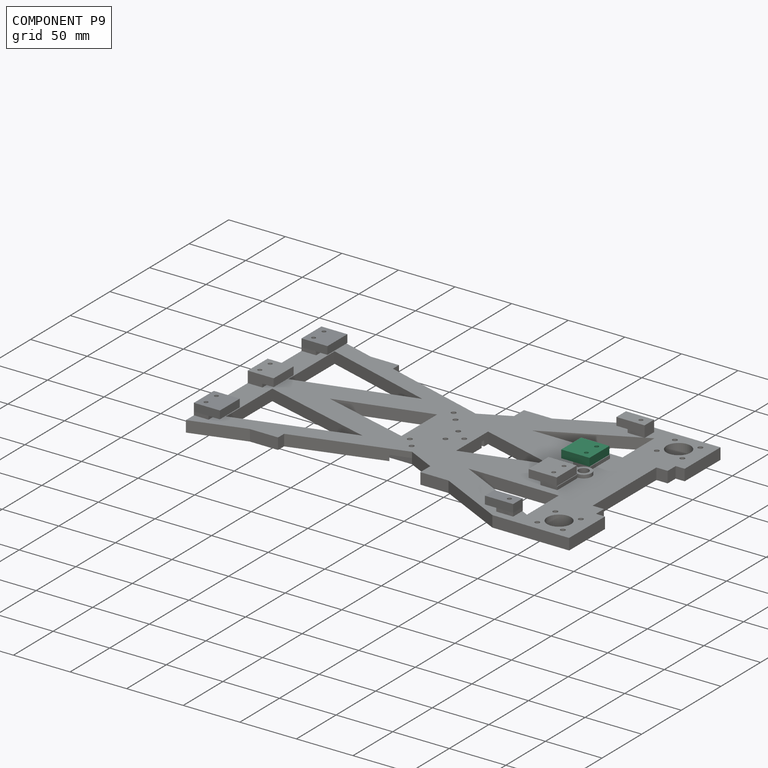
[diagram: component P9 — assembled]
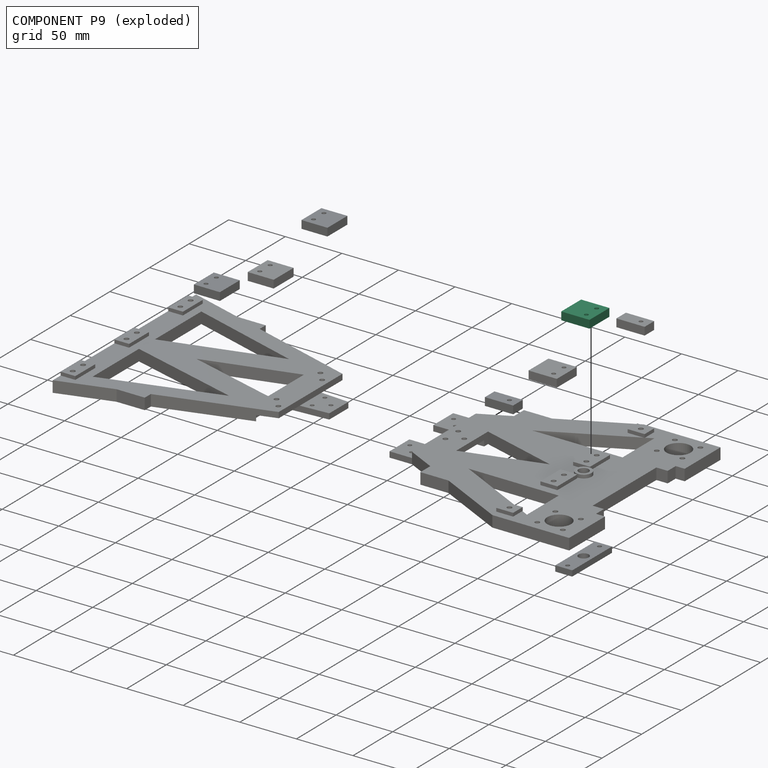
[diagram: component P9 — exploded]
COMPONENT P9 — same part as P4 (CADFS 00824001); its construction recipe is shown at P4.
Held by: FASTENED mate "Fastened 2" to P2.
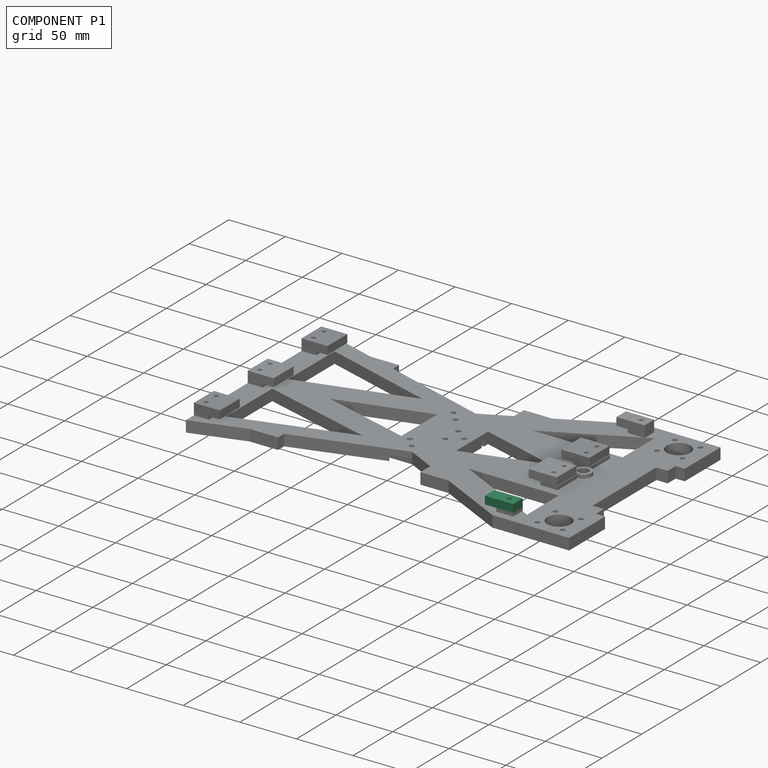
[diagram: component P1 — assembled]
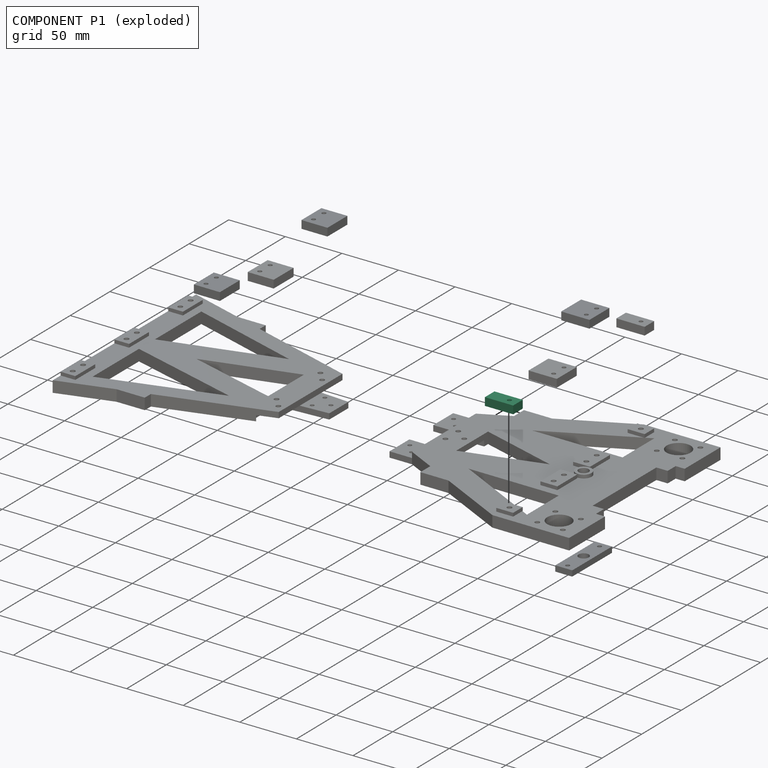
[diagram: component P1 — exploded]
COMPONENT P1 — same part as P0 (CADFS 00824003); its construction recipe is shown at P0.
Held by: FASTENED mate "Fastened 8" to P2.
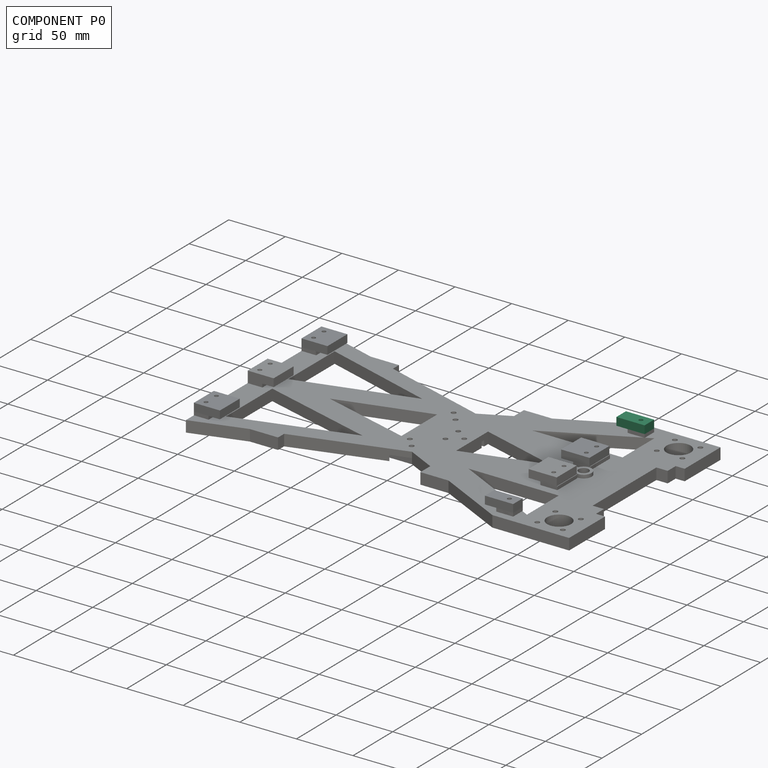
[diagram: component P0 — assembled]
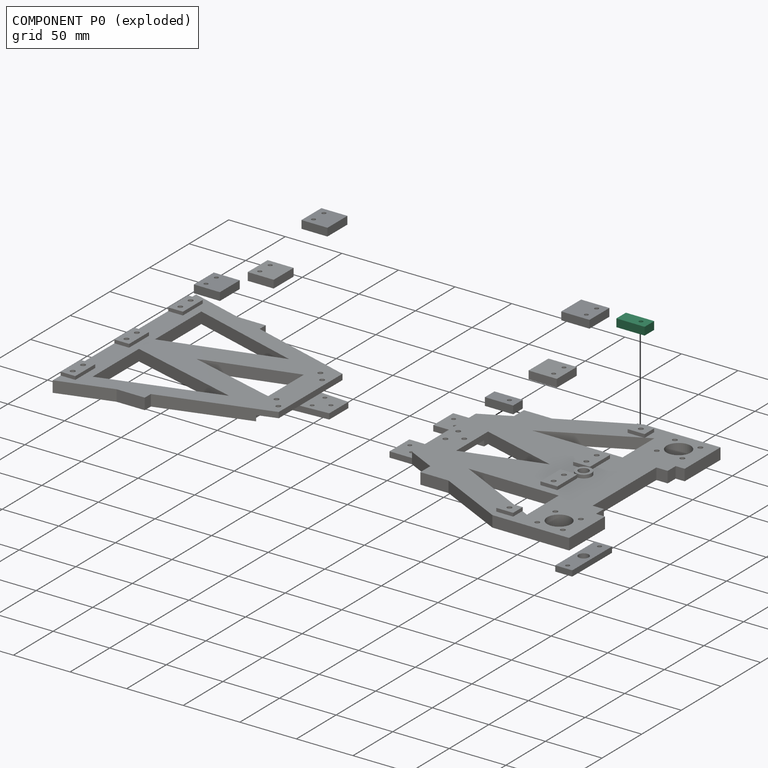
[diagram: component P0 — exploded]
COMPONENT P0 — recipe-attached (CADFS 00824003, mesh-verified: the recipe's output STEP matches this component's geometry to below the mesh-comparison resolution (tessellation chordal tolerance ~0.0429 mm)).
Held by: FASTENED mate "Fastened 7" to P2.
Construction recipe (FeatureScript — the CAD program that rebuilds this solid; sketch coordinates are in the units given by the * unit suffixes, e.g. mm):

FeatureScript 1511;
import(path : "onshape/std/geometry.fs", version : "1511.0");
import(path : "onshape/std/common.fs", version : "1511.0");
const mm = millimeter;
const VERTEX = EntityType.VERTEX;
const EDGE = EntityType.EDGE;
const FACE = EntityType.FACE;
const BODY = EntityType.BODY;
function v(x, y){return vector(x, y);}
function OD(order){return orderDisambiguation(order);}
function OSD(set){return originalSetDisambiguation(set);}
function TD(topology){return topologyDisambiguation(topology);}
function TDD(query){return trueDependencyDisambiguation(query);}
function sQuery(a, b, c) {return sketchEntityQuery(a, b, c);}

annotation { "Feature Type Name" : "Feature", "Feature Type Description" : "" }
export const myFeature = defineFeature(function(context is Context, id is Id, definition is map)
    precondition{}
    {
        {
            var Q0;
            Q0=qCreatedBy(makeId("Top.planeOp"),FACE);
            var sketch = newSketch(context, id + "F0", { "sketchPlane" : qUnion([Q0])});
            skLineSegment(sketch, "E0.bottom", {"start": v(0, 0) * mm, "end": v(12, 0) * mm});
            skLineSegment(sketch, "E0.top", {"start": v(0, 25) * mm, "end": v(12, 25) * mm});
            skLineSegment(sketch, "E0.left", {"start": v(0, 0) * mm, "end": v(0, 25) * mm});
            skLineSegment(sketch, "E0.right", {"start": v(12, 0) * mm, "end": v(12, 25) * mm});
            skCircle(sketch, "E1", {"center": v(6, 7.5) * mm, "radius": 1.75 * mm});
            skSolve(sketch);
        }
        {
            var Q0;
            Q0 = qSketchRegion(id + "F0", true);
            extrude(context, id + "F1", {"entities" : qUnion([Q0]), "depth" : 7 * mm, "offsetDistance" : 25 * mm});
        }
    });
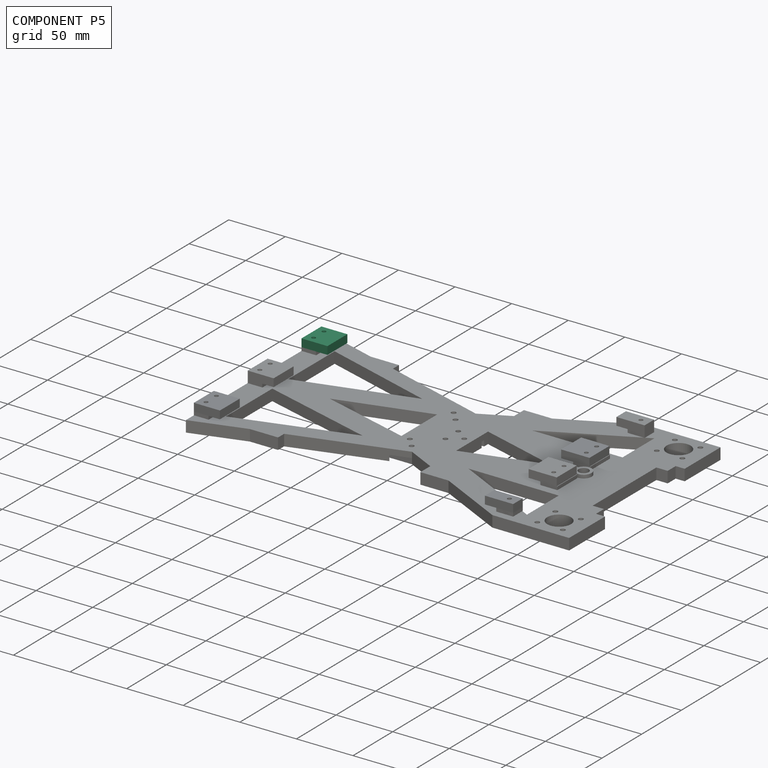
[diagram: component P5 — assembled]
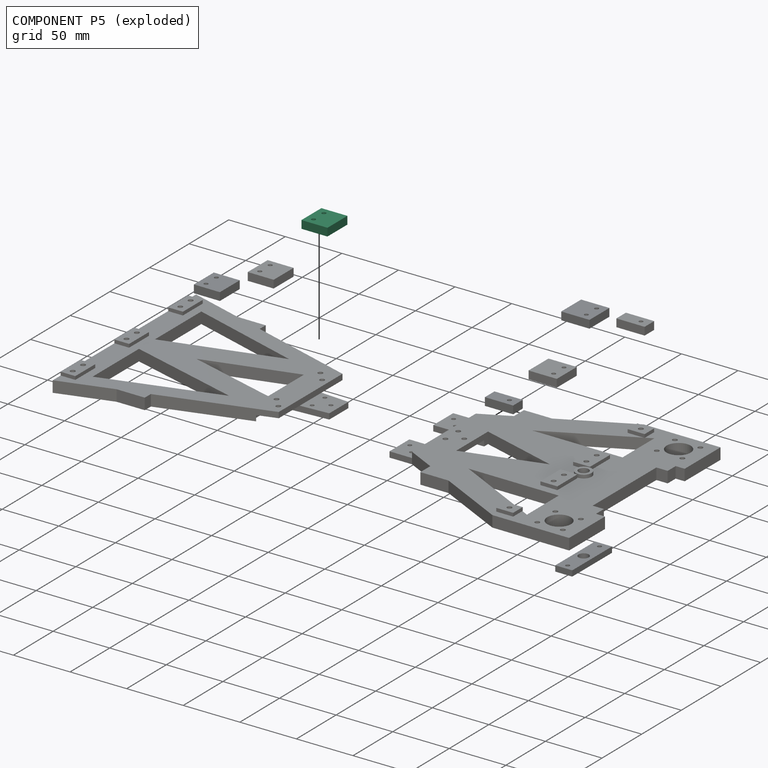
[diagram: component P5 — exploded]
COMPONENT P5 — recipe-attached (CADFS 00824004, mesh-verified: the recipe's output STEP matches this component's geometry to below the mesh-comparison resolution (tessellation chordal tolerance ~0.052 mm)).
Held by: FASTENED mate "Fastened 4" to P8.
Construction recipe (FeatureScript — the CAD program that rebuilds this solid; sketch coordinates are in the units given by the * unit suffixes, e.g. mm):

FeatureScript 1511;
import(path : "onshape/std/geometry.fs", version : "1511.0");
import(path : "onshape/std/common.fs", version : "1511.0");
const mm = millimeter;
const VERTEX = EntityType.VERTEX;
const EDGE = EntityType.EDGE;
const FACE = EntityType.FACE;
const BODY = EntityType.BODY;
function v(x, y){return vector(x, y);}
function OD(order){return orderDisambiguation(order);}
function OSD(set){return originalSetDisambiguation(set);}
function TD(topology){return topologyDisambiguation(topology);}
function TDD(query){return trueDependencyDisambiguation(query);}
function sQuery(a, b, c) {return sketchEntityQuery(a, b, c);}

annotation { "Feature Type Name" : "Feature", "Feature Type Description" : "" }
export const myFeature = defineFeature(function(context is Context, id is Id, definition is map)
    precondition{}
    {
        {
            var Q0;
            Q0=qCreatedBy(makeId("Top.planeOp"),FACE);
            var sketch = newSketch(context, id + "F0", { "sketchPlane" : qUnion([Q0])});
            skLineSegment(sketch, "E0.bottom", {"start": v(0, 0) * mm, "end": v(25, 0) * mm});
            skLineSegment(sketch, "E0.left", {"start": v(0, 0) * mm, "end": v(0, 13) * mm});
            skLineSegment(sketch, "E0.right", {"start": v(25, 0) * mm, "end": v(25, 13) * mm});
            skCircle(sketch, "E1", {"center": v(6, 6.5) * mm, "radius": 1.75 * mm});
            skCircle(sketch, "E2", {"center": v(19, 6.5) * mm, "radius": 1.75 * mm});
            skLineSegment(sketch, "E3", {"start": v(0, 13) * mm, "end": v(0, 23) * mm});
            skLineSegment(sketch, "E4", {"start": v(0, 23) * mm, "end": v(25, 23) * mm});
            skLineSegment(sketch, "E5", {"start": v(25, 23) * mm, "end": v(25, 13) * mm});
            skSolve(sketch);
        }
        {
            var Q0;
            Q0 = qSketchRegion(id + "F0", true);
            extrude(context, id + "F1", {"entities" : qUnion([Q0]), "depth" : 7 * mm, "offsetDistance" : 25 * mm});
        }
    });
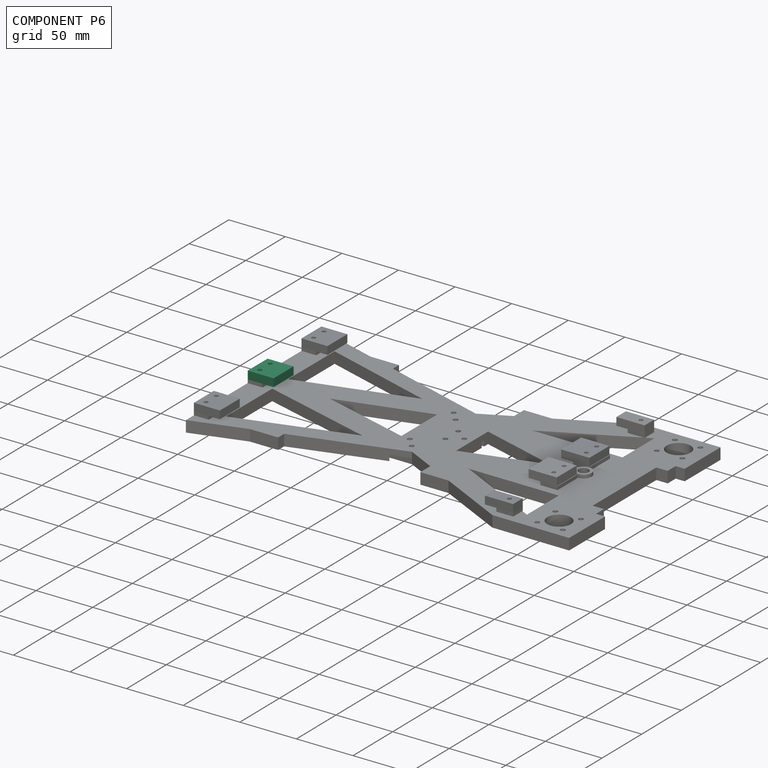
[diagram: component P6 — assembled]
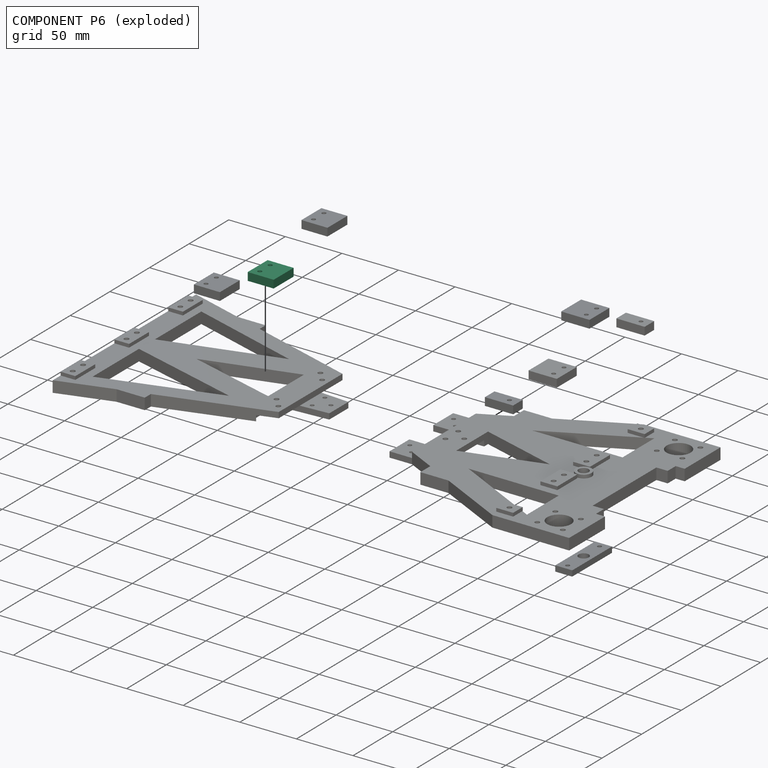
[diagram: component P6 — exploded]
COMPONENT P6 — same part as P5 (CADFS 00824004); its construction recipe is shown at P5.
Held by: FASTENED mate "Fastened 5" to P8.
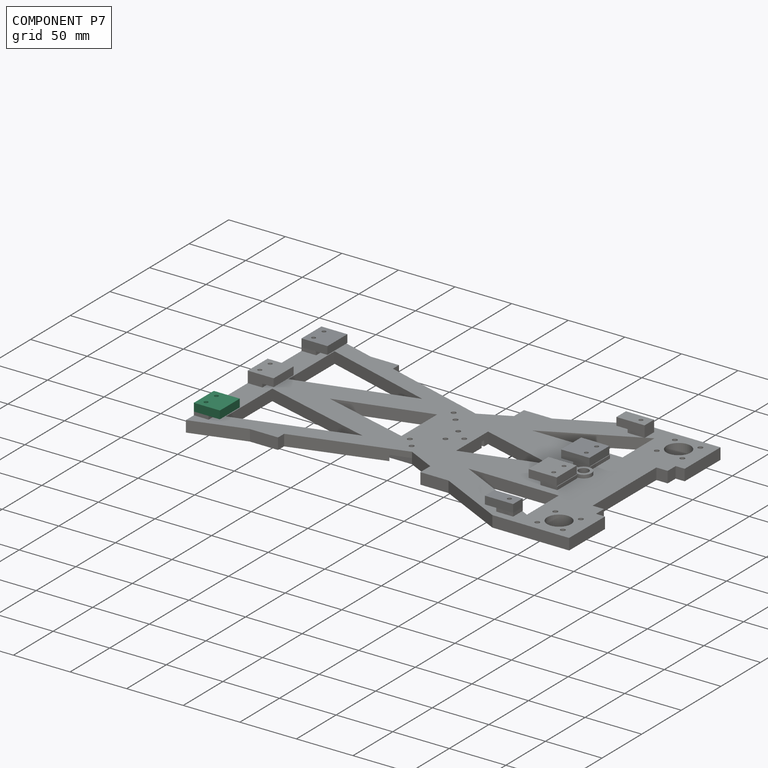
[diagram: component P7 — assembled]
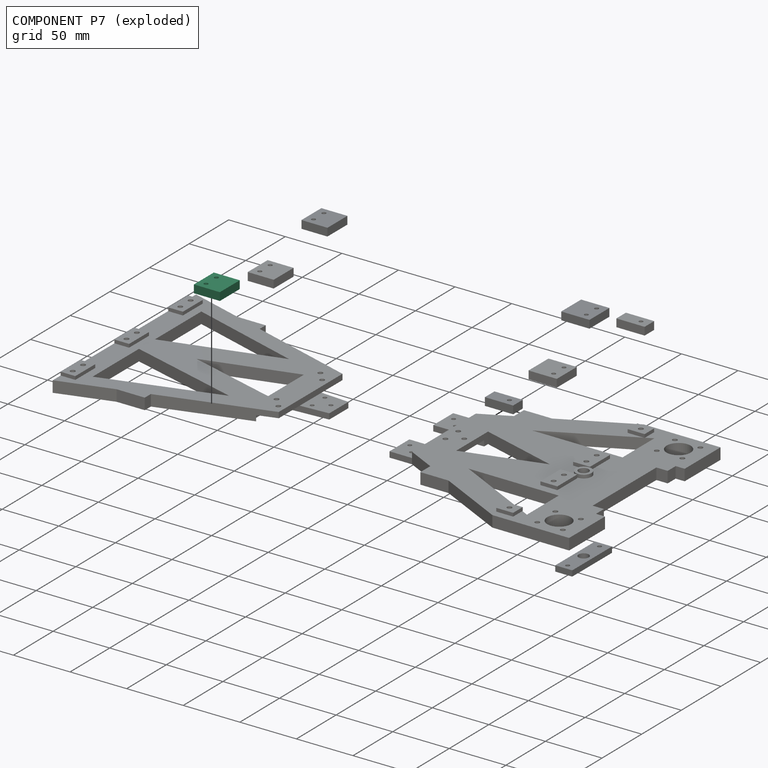
[diagram: component P7 — exploded]
COMPONENT P7 — same part as P5 (CADFS 00824004); its construction recipe is shown at P5.
Held by: FASTENED mate "Fastened 6" to P8.
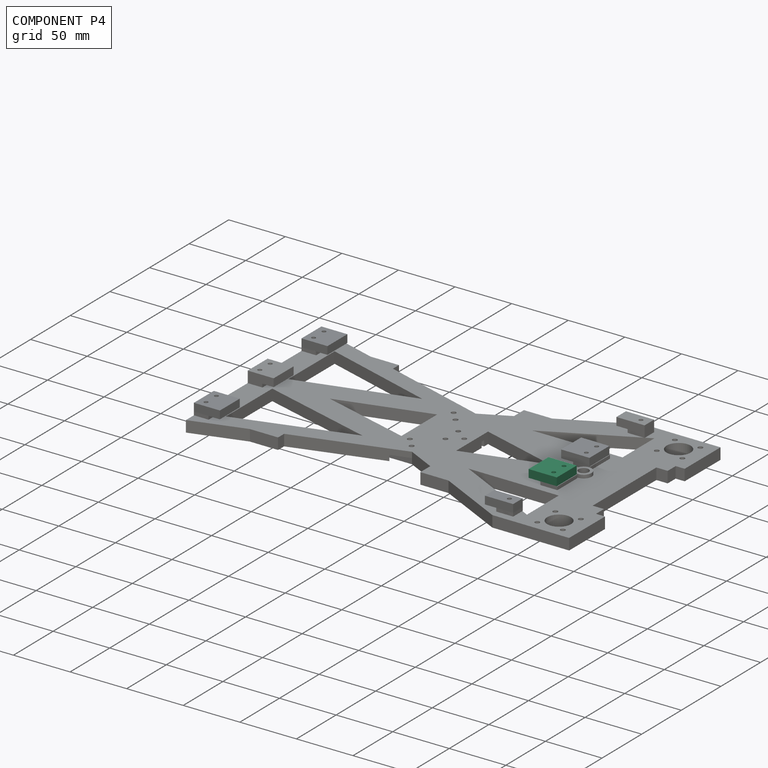
[diagram: component P4 — assembled]
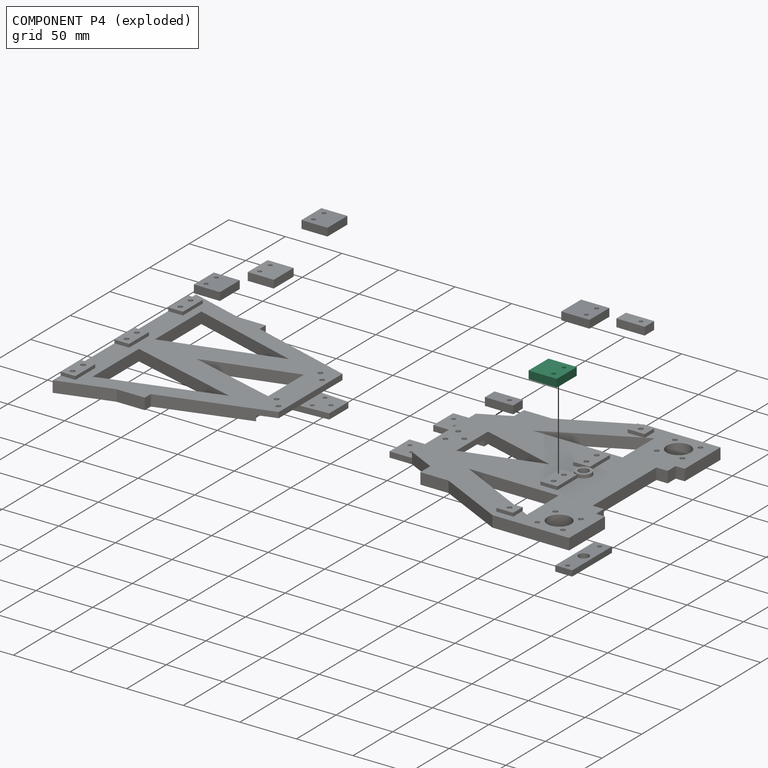
[diagram: component P4 — exploded]
COMPONENT P4 — recipe-attached (CADFS 00824001, mesh-verified: the recipe's output STEP matches this component's geometry to below the mesh-comparison resolution (tessellation chordal tolerance ~0.0541 mm)).
Held by: FASTENED mate "Fastened 3" to P2.
Construction recipe (FeatureScript — the CAD program that rebuilds this solid; sketch coordinates are in the units given by the * unit suffixes, e.g. mm):

FeatureScript 1511;
import(path : "onshape/std/geometry.fs", version : "1511.0");
import(path : "onshape/std/common.fs", version : "1511.0");
const mm = millimeter;
const VERTEX = EntityType.VERTEX;
const EDGE = EntityType.EDGE;
const FACE = EntityType.FACE;
const BODY = EntityType.BODY;
function v(x, y){return vector(x, y);}
function OD(order){return orderDisambiguation(order);}
function OSD(set){return originalSetDisambiguation(set);}
function TD(topology){return topologyDisambiguation(topology);}
function TDD(query){return trueDependencyDisambiguation(query);}
function sQuery(a, b, c) {return sketchEntityQuery(a, b, c);}

annotation { "Feature Type Name" : "Feature", "Feature Type Description" : "" }
export const myFeature = defineFeature(function(context is Context, id is Id, definition is map)
    precondition{}
    {
        {
            var Q0;
            Q0=qCreatedBy(makeId("Top.planeOp"),FACE);
            var sketch = newSketch(context, id + "F0", { "sketchPlane" : qUnion([Q0])});
            skLineSegment(sketch, "E0.bottom", {"start": v(0, 0) * mm, "end": v(25, 0) * mm});
            skLineSegment(sketch, "E0.top", {"start": v(0, 25) * mm, "end": v(25, 25) * mm});
            skLineSegment(sketch, "E0.left", {"start": v(0, 0) * mm, "end": v(0, 25) * mm});
            skLineSegment(sketch, "E0.right", {"start": v(25, 0) * mm, "end": v(25, 25) * mm});
            skCircle(sketch, "E1", {"center": v(6, 18) * mm, "radius": 1.75 * mm});
            skCircle(sketch, "E2", {"center": v(19, 18) * mm, "radius": 1.75 * mm});
            skSolve(sketch);
        }
        {
            var Q0;
            Q0 = qSketchRegion(id + "F0", true);
            extrude(context, id + "F1", {"entities" : qUnion([Q0]), "depth" : 7 * mm, "offsetDistance" : 25 * mm});
        }
    });
